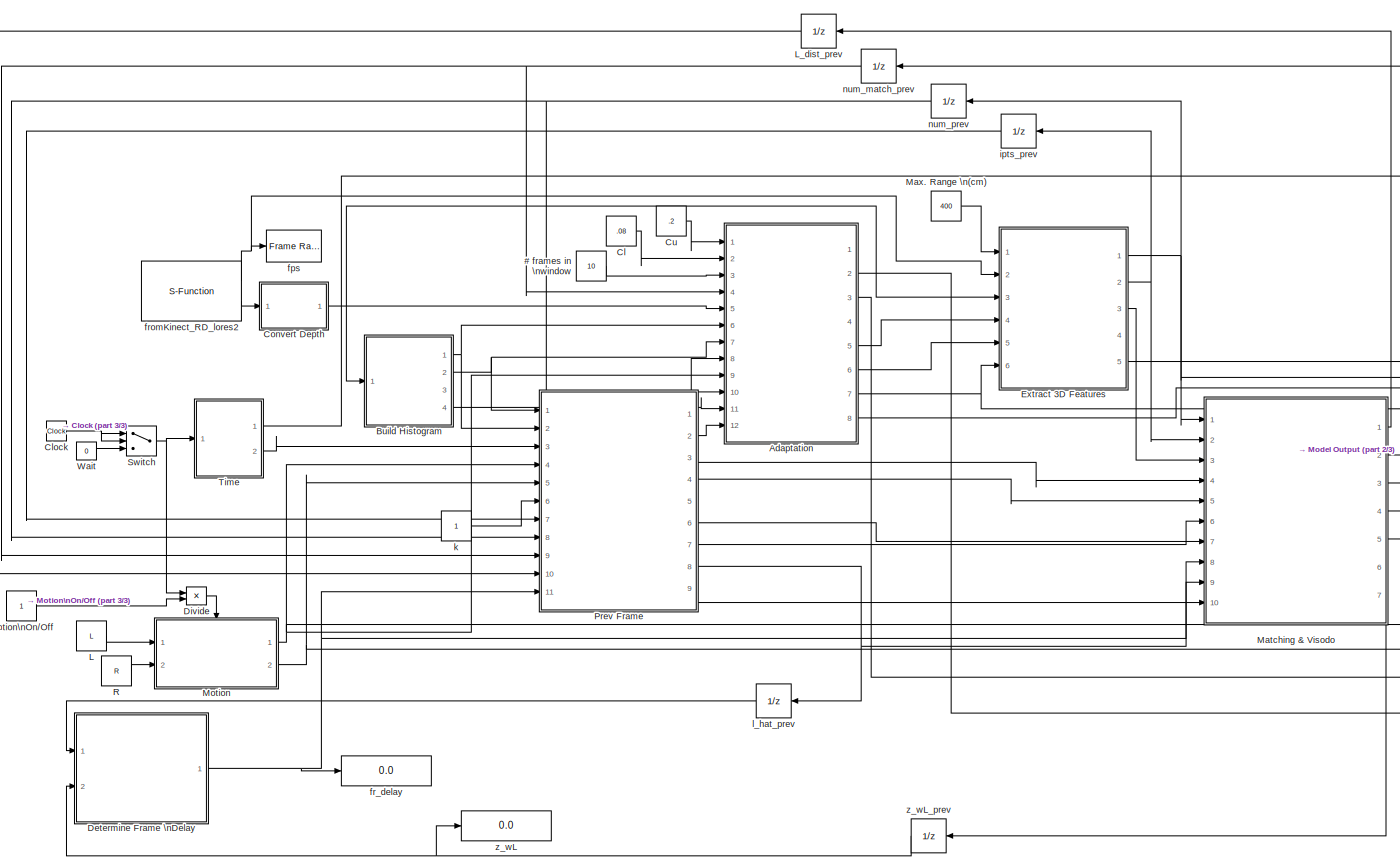
[diagram: root canvas - part 1/3, most of the canvas]
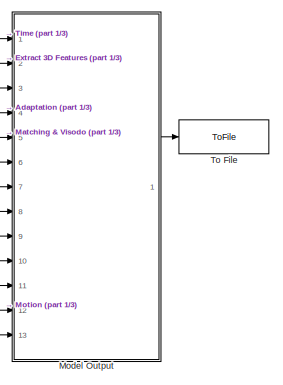
[diagram: root canvas - part 2/3, middle right region]
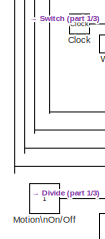
[diagram: root canvas - part 3/3, middle left region]
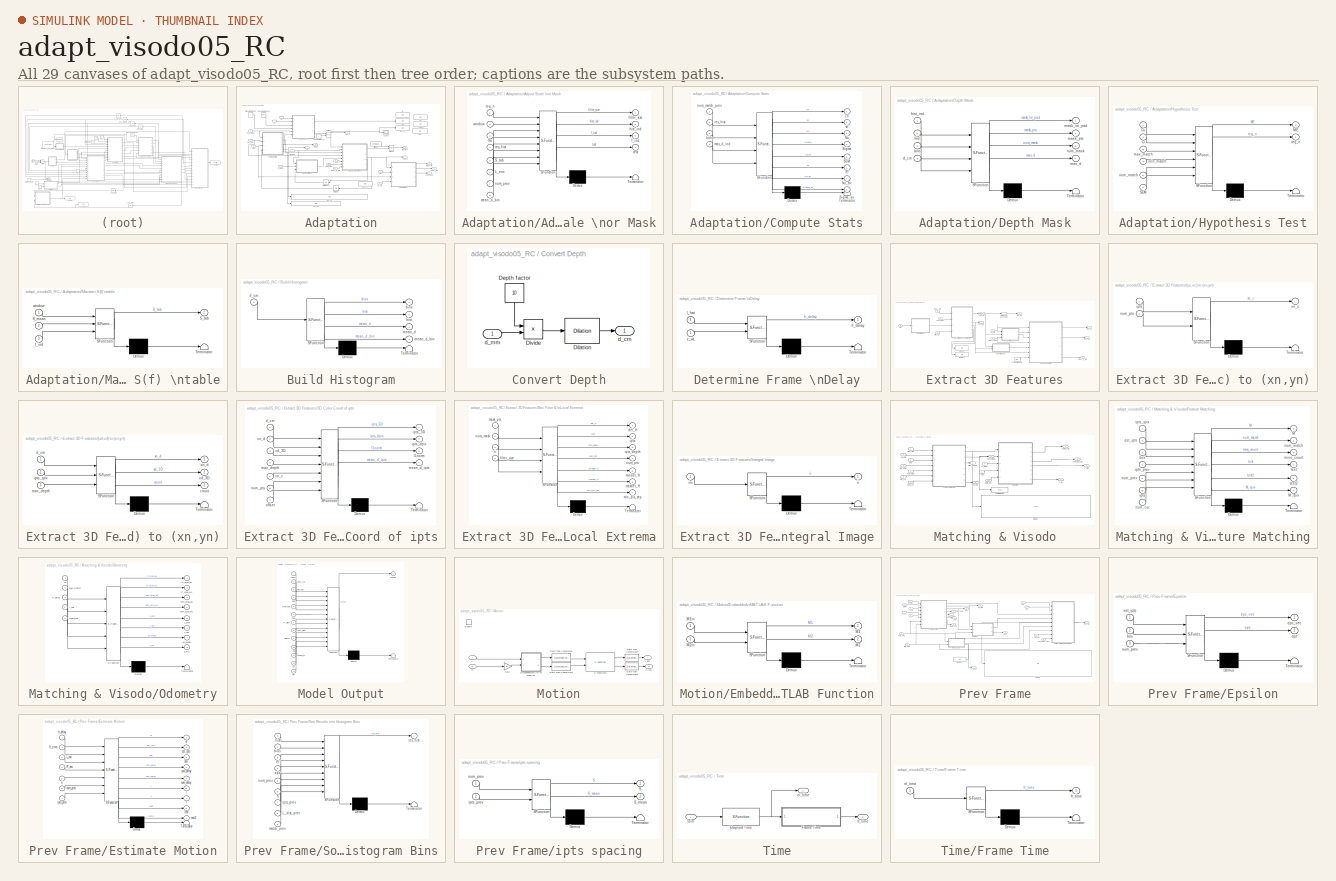
[diagram: thumbnail index - all 29 canvases of the model, root first then tree order]
MODEL adapt_visodo05_RC
KIND model
BLOCK [Constant] # frames in \nwindow
  OutDataType = fixdt(1, 16)
  OutScaling = 2^0
  SID = 1045
  Value = 10
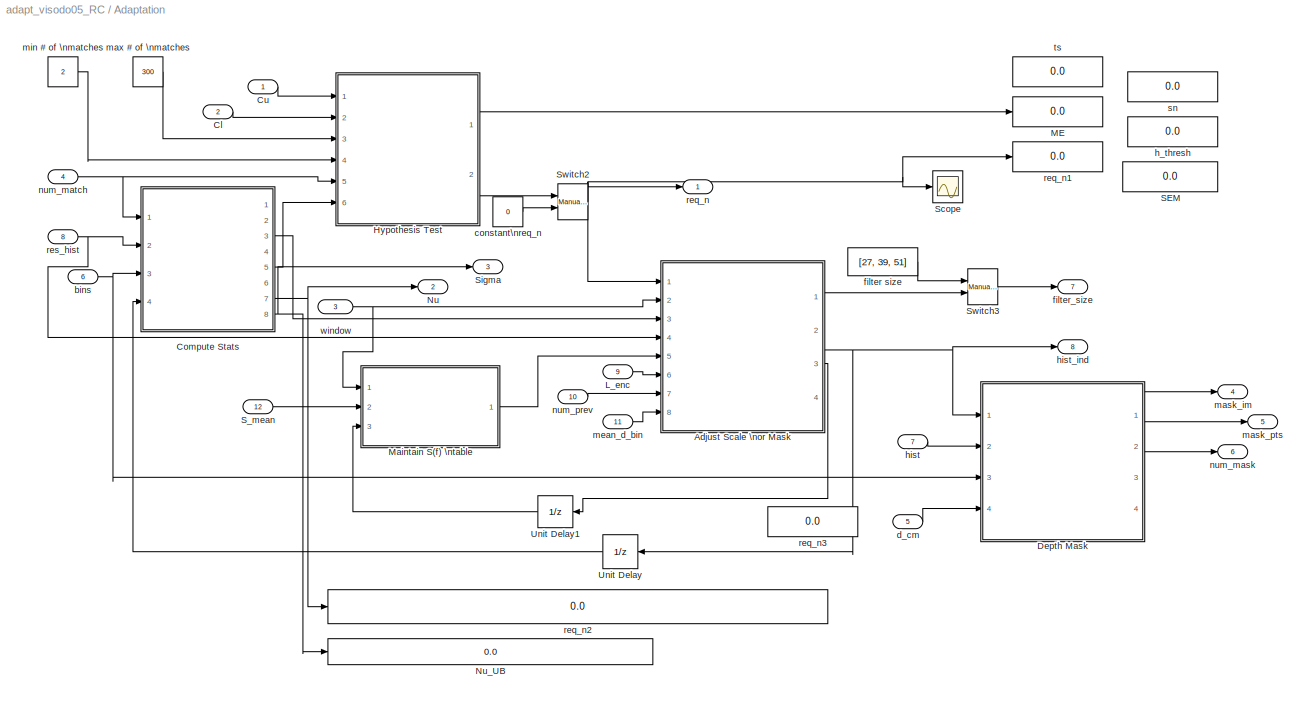
BLOCK [SubSystem] Adaptation
  FunctionWithSeparateData = off
  MaskHideContents = off
  MinAlgLoopOccurrences = off
  Opaque = off
  Ports = [12, 8]
  PropExecContextOutsideSubsystem = off
  RTWSystemCode = Auto
  RequestExecContextInheritance = off
  SID = 1212
BLOCK [SubSystem] Adaptation/Adjust Scale \nor Mask
  FunctionWithSeparateData = off
  MaskDescription = Embedded MATLAB block
  MaskDisplay = disp('decision');
  MaskHideContents = off
  MaskIconFrame = on
  MaskIconOpaque = off
  MaskIconRotate = none
  MaskIconUnits = autoscale
  MaskPortRotate = default
  MaskSelfModifiable = on
  MaskType = Stateflow
  MinAlgLoopOccurrences = off
  Opaque = off
  PermitHierarchicalResolution = ExplicitOnly
  Ports = [8, 4]
  PropExecContextOutsideSubsystem = off
  RTWSystemCode = Auto
  RequestExecContextInheritance = off
  SID = 1338
  TreatAsAtomicUnit = on
BLOCK [Demux] Adaptation/Adjust Scale \nor Mask/ Demux 
  Outputs = 1
  Ports = [1, 1]
  SID = 15
BLOCK [S-Function] Adaptation/Adjust Scale \nor Mask/ SFunction 
  EnableBusSupport = on
  FunctionName = sf_sfun
  PortCounts = [8 5]
  Ports = [8, 5]
  SID = 14
  Tag = Stateflow S-Function adapt_visodo05_RC 14
BLOCK [Terminator] Adaptation/Adjust Scale \nor Mask/ Terminator 
  SID = 17
BLOCK [Inport] Adaptation/Adjust Scale \nor Mask/L_enc
  IconDisplay = Port number
  Port = 6
  SID = 23
BLOCK [Inport] Adaptation/Adjust Scale \nor Mask/Nu
  IconDisplay = Port number
  Port = 3
  SID = 18
BLOCK [Inport] Adaptation/Adjust Scale \nor Mask/S_tab
  IconDisplay = Port number
  Port = 5
  SID = 29
BLOCK [Outport] Adaptation/Adjust Scale \nor Mask/f_ind
  IconDisplay = Port number
  Port = 3
  SID = 28
BLOCK [Outport] Adaptation/Adjust Scale \nor Mask/filter_size
  IconDisplay = Port number
  SID = 19
BLOCK [Outport] Adaptation/Adjust Scale \nor Mask/hist_ind
  IconDisplay = Port number
  OutDataType = sfix(16)
  OutScaling = 2^0
  Port = 2
  SID = 5
BLOCK [Inport] Adaptation/Adjust Scale \nor Mask/mean_d_bin
  IconDisplay = Port number
  Port = 8
  SID = 27
BLOCK [Inport] Adaptation/Adjust Scale \nor Mask/num_prev
  IconDisplay = Port number
  Port = 7
  SID = 24
BLOCK [Inport] Adaptation/Adjust Scale \nor Mask/req_n
  IconDisplay = Port number
  OutDataType = sfix(16)
  OutScaling = 2^0
  SID = 1
BLOCK [Inport] Adaptation/Adjust Scale \nor Mask/res_hist
  IconDisplay = Port number
  Port = 4
  SID = 30
BLOCK [Outport] Adaptation/Adjust Scale \nor Mask/test
  IconDisplay = Port number
  Port = 4
  SID = 26
BLOCK [Inport] Adaptation/Adjust Scale \nor Mask/window
  IconDisplay = Port number
  Port = 2
  SID = 20
BLOCK [Inport] Adaptation/Cl
  IconDisplay = Port number
  Port = 2
  SID = 1488
BLOCK [SubSystem] Adaptation/Compute Stats
  FunctionWithSeparateData = off
  MaskDescription = Embedded MATLAB block
  MaskDisplay = disp('stats');
  MaskHideContents = off
  MaskIconFrame = on
  MaskIconOpaque = off
  MaskIconRotate = none
  MaskIconUnits = autoscale
  MaskPortRotate = default
  MaskSelfModifiable = on
  MaskType = Stateflow
  MinAlgLoopOccurrences = off
  Opaque = off
  PermitHierarchicalResolution = ExplicitOnly
  Ports = [4, 8]
  PropExecContextOutsideSubsystem = off
  RTWSystemCode = Auto
  RequestExecContextInheritance = off
  SID = 1346
  TreatAsAtomicUnit = on
BLOCK [Demux] Adaptation/Compute Stats/ Demux 
  Outputs = 1
  Ports = [1, 1]
  SID = 15
BLOCK [S-Function] Adaptation/Compute Stats/ SFunction 
  EnableBusSupport = on
  FunctionName = sf_sfun
  PortCounts = [4 9]
  Ports = [4, 9]
  SID = 14
  Tag = Stateflow S-Function adapt_visodo05_RC 20
BLOCK [Terminator] Adaptation/Compute Stats/ Terminator 
  SID = 17
BLOCK [Outport] Adaptation/Compute Stats/Ln
  IconDisplay = Port number
  SID = 25
BLOCK [Outport] Adaptation/Compute Stats/Nu
  IconDisplay = Port number
  Port = 3
  SID = 19
BLOCK [Outport] Adaptation/Compute Stats/Nu_av
  IconDisplay = Port number
  Port = 7
  SID = 27
BLOCK [Outport] Adaptation/Compute Stats/SEM
  IconDisplay = Port number
  Port = 5
  SID = 20
BLOCK [Outport] Adaptation/Compute Stats/Sigma
  IconDisplay = Port number
  Port = 4
  SID = 26
BLOCK [Outport] Adaptation/Compute Stats/Sigma_av
  IconDisplay = Port number
  Port = 8
  SID = 28
BLOCK [Inport] Adaptation/Compute Stats/bins
  IconDisplay = Port number
  Port = 3
  SID = 18
BLOCK [Outport] Adaptation/Compute Stats/ef
  IconDisplay = Port number
  Port = 6
  SID = 23
BLOCK [Inport] Adaptation/Compute Stats/max_d_ind
  IconDisplay = Port number
  Port = 4
  SID = 24
BLOCK [Inport] Adaptation/Compute Stats/num_match_prev
  IconDisplay = Port number
  SID = 22
BLOCK [Inport] Adaptation/Compute Stats/res_hist
  IconDisplay = Port number
  OutDataType = sfix(16)
  OutScaling = 2^0
  Port = 2
  SID = 1
BLOCK [Outport] Adaptation/Compute Stats/sn
  IconDisplay = Port number
  Port = 2
  SID = 21
BLOCK [Inport] Adaptation/Cu
  IconDisplay = Port number
  SID = 1487
BLOCK [SubSystem] Adaptation/Depth Mask
  FunctionWithSeparateData = off
  MaskDescription = Embedded MATLAB block
  MaskDisplay = disp('make_mask');
  MaskHideContents = off
  MaskIconFrame = on
  MaskIconOpaque = off
  MaskIconRotate = none
  MaskIconUnits = autoscale
  MaskPortRotate = default
  MaskSelfModifiable = on
  MaskType = Stateflow
  MinAlgLoopOccurrences = off
  Opaque = off
  PermitHierarchicalResolution = ExplicitOnly
  Ports = [4, 4]
  PropExecContextOutsideSubsystem = off
  RTWSystemCode = Auto
  RequestExecContextInheritance = off
  SID = 1407
  TreatAsAtomicUnit = on
BLOCK [Demux] Adaptation/Depth Mask/ Demux 
  Outputs = 1
  Ports = [1, 1]
  SID = 15
BLOCK [S-Function] Adaptation/Depth Mask/ SFunction 
  EnableBusSupport = on
  FunctionName = sf_sfun
  PortCounts = [4 5]
  Ports = [4, 5]
  SID = 14
  Tag = Stateflow S-Function adapt_visodo05_RC 19
BLOCK [Terminator] Adaptation/Depth Mask/ Terminator 
  SID = 17
BLOCK [Inport] Adaptation/Depth Mask/bins
  IconDisplay = Port number
  Port = 3
  SID = 28
BLOCK [Inport] Adaptation/Depth Mask/d_cm
  IconDisplay = Port number
  Port = 4
  SID = 19
BLOCK [Inport] Adaptation/Depth Mask/hist
  IconDisplay = Port number
  Port = 2
  SID = 18
BLOCK [Inport] Adaptation/Depth Mask/hist_ind
  IconDisplay = Port number
  SID = 30
BLOCK [Outport] Adaptation/Depth Mask/mask_im_pad
  IconDisplay = Port number
  SID = 22
BLOCK [Outport] Adaptation/Depth Mask/mask_pts
  IconDisplay = Port number
  OutDataType = sfix(16)
  OutScaling = 2^0
  Port = 2
  SID = 5
BLOCK [Outport] Adaptation/Depth Mask/max_d
  IconDisplay = Port number
  Port = 4
  SID = 23
BLOCK [Outport] Adaptation/Depth Mask/num_mask
  IconDisplay = Port number
  Port = 3
  SID = 20
BLOCK [SubSystem] Adaptation/Hypothesis Test
  FunctionWithSeparateData = off
  MaskDescription = Embedded MATLAB block
  MaskDisplay = disp('req_num');
  MaskHideContents = off
  MaskIconFrame = on
  MaskIconOpaque = off
  MaskIconRotate = none
  MaskIconUnits = autoscale
  MaskPortRotate = default
  MaskSelfModifiable = on
  MaskType = Stateflow
  MinAlgLoopOccurrences = off
  Opaque = off
  PermitHierarchicalResolution = ExplicitOnly
  Ports = [6, 2]
  PropExecContextOutsideSubsystem = off
  RTWSystemCode = Auto
  RequestExecContextInheritance = off
  SID = 1098
  TreatAsAtomicUnit = on
BLOCK [Demux] Adaptation/Hypothesis Test/ Demux 
  Outputs = 1
  Ports = [1, 1]
  SID = 15
BLOCK [S-Function] Adaptation/Hypothesis Test/ SFunction 
  EnableBusSupport = on
  FunctionName = sf_sfun
  PortCounts = [6 3]
  Ports = [6, 3]
  SID = 14
  Tag = Stateflow S-Function adapt_visodo05_RC 3
BLOCK [Terminator] Adaptation/Hypothesis Test/ Terminator 
  SID = 17
BLOCK [Inport] Adaptation/Hypothesis Test/Cl
  IconDisplay = Port number
  Port = 2
  SID = 32
BLOCK [Inport] Adaptation/Hypothesis Test/Cu
  IconDisplay = Port number
  SID = 30
BLOCK [Outport] Adaptation/Hypothesis Test/ME
  IconDisplay = Port number
  SID = 23
BLOCK [Inport] Adaptation/Hypothesis Test/SEM
  IconDisplay = Port number
  OutDataType = sfix(16)
  OutScaling = 2^0
  Port = 6
  SID = 1
BLOCK [Inport] Adaptation/Hypothesis Test/max_match
  IconDisplay = Port number
  Port = 3
  SID = 27
BLOCK [Inport] Adaptation/Hypothesis Test/min_match
  IconDisplay = Port number
  Port = 4
  SID = 29
BLOCK [Inport] Adaptation/Hypothesis Test/num_match
  IconDisplay = Port number
  Port = 5
  SID = 19
BLOCK [Outport] Adaptation/Hypothesis Test/req_n
  IconDisplay = Port number
  OutDataType = sfix(16)
  OutScaling = 2^0
  Port = 2
  SID = 5
BLOCK [Inport] Adaptation/L_enc
  IconDisplay = Port number
  OutDataType = fixdt(1, 16)
  OutScaling = 2^0
  Port = 9
  SID = 1467
BLOCK [Display] Adaptation/ME
  Decimation = 1
  Lockdown = off
  Ports = [1]
  SID = 1352
BLOCK [SubSystem] Adaptation/Maintain S(f) \ntable
  FunctionWithSeparateData = off
  MaskDescription = Embedded MATLAB block
  MaskDisplay = disp('S_f_table');
  MaskHideContents = off
  MaskIconFrame = on
  MaskIconOpaque = off
  MaskIconRotate = none
  MaskIconUnits = autoscale
  MaskPortRotate = default
  MaskSelfModifiable = on
  MaskType = Stateflow
  MinAlgLoopOccurrences = off
  Opaque = off
  PermitHierarchicalResolution = ExplicitOnly
  Ports = [3, 1]
  PropExecContextOutsideSubsystem = off
  RTWSystemCode = Auto
  RequestExecContextInheritance = off
  SID = 1520
  TreatAsAtomicUnit = on
BLOCK [Demux] Adaptation/Maintain S(f) \ntable/ Demux 
  Outputs = 1
  Ports = [1, 1]
  SID = 15
BLOCK [S-Function] Adaptation/Maintain S(f) \ntable/ SFunction 
  EnableBusSupport = on
  FunctionName = sf_sfun
  PortCounts = [3 2]
  Ports = [3, 2]
  SID = 14
  Tag = Stateflow S-Function adapt_visodo05_RC 6
BLOCK [Terminator] Adaptation/Maintain S(f) \ntable/ Terminator 
  SID = 17
BLOCK [Inport] Adaptation/Maintain S(f) \ntable/S_mean
  IconDisplay = Port number
  OutDataType = sfix(16)
  OutScaling = 2^0
  Port = 2
  SID = 1
BLOCK [Outport] Adaptation/Maintain S(f) \ntable/S_tab
  IconDisplay = Port number
  OutDataType = sfix(16)
  OutScaling = 2^0
  SID = 5
BLOCK [Inport] Adaptation/Maintain S(f) \ntable/f_ind
  IconDisplay = Port number
  Port = 3
  SID = 19
BLOCK [Inport] Adaptation/Maintain S(f) \ntable/window
  IconDisplay = Port number
  SID = 18
BLOCK [Outport] Adaptation/Nu
  IconDisplay = Port number
  Port = 2
  SID = 1216
BLOCK [Display] Adaptation/Nu_UB
  Decimation = 1
  Lockdown = off
  Ports = [1]
  SID = 1283
BLOCK [Display] Adaptation/SEM
  Decimation = 1
  Lockdown = off
  Ports = [1]
  SID = 1351
BLOCK [Inport] Adaptation/S_mean
  IconDisplay = Port number
  Port = 12
  SID = 1522
BLOCK [Scope] Adaptation/Scope
  DataFormat = StructureWithTime
  Floating = off
  NumInputPorts = 1
  Ports = [1]
  SID = 1473
  SampleTime = 0
  TimeRange = 1000
  YMax = 2
  YMin = -2
BLOCK [Outport] Adaptation/Sigma
  IconDisplay = Port number
  Port = 3
  SID = 1263
BLOCK [Reference] Adaptation/Switch2  REF=simulink/Signal\nRouting/Manual Switch
  FunctionWithSeparateData = off
  Ports = [2, 1]
  RTWMemSecDataConstants = Inherit from model
  RTWMemSecDataInternal = Inherit from model
  RTWMemSecDataParameters = Inherit from model
  RTWMemSecFuncExecute = Inherit from model
  RTWMemSecFuncInitTerm = Inherit from model
  SID = 1423
  ShowPortLabels = FromPortIcon
  SourceBlock = simulink/Signal\nRouting/Manual Switch
  SourceType = Manual Switch
  SystemSampleTime = -1
  action = 0
  sw = 1
  varsize = off
BLOCK [Reference] Adaptation/Switch3  REF=simulink/Signal\nRouting/Manual Switch
  FunctionWithSeparateData = off
  Ports = [2, 1]
  RTWMemSecDataConstants = Inherit from model
  RTWMemSecDataInternal = Inherit from model
  RTWMemSecDataParameters = Inherit from model
  RTWMemSecFuncExecute = Inherit from model
  RTWMemSecFuncInitTerm = Inherit from model
  SID = 1425
  ShowPortLabels = FromPortIcon
  SourceBlock = simulink/Signal\nRouting/Manual Switch
  SourceType = Manual Switch
  SystemSampleTime = -1
  action = 0
  sw = 0
  varsize = off
BLOCK [UnitDelay] Adaptation/Unit Delay
  SID = 1471
  SampleTime = -1
  X0 = 2
BLOCK [UnitDelay] Adaptation/Unit Delay1
  SID = 1521
  SampleTime = -1
  X0 = 2
BLOCK [Inport] Adaptation/bins
  IconDisplay = Port number
  Port = 6
  SID = 1397
BLOCK [Constant] Adaptation/constant\nreq_n
  OutDataType = fixdt(1, 16)
  OutScaling = 2^0
  SID = 1424
  Value = 0
BLOCK [Inport] Adaptation/d_cm
  IconDisplay = Port number
  Port = 5
  SID = 1404
BLOCK [Constant] Adaptation/filter size
  OutDataType = fixdt(1, 16)
  OutScaling = 2^0
  SID = 1413
  Value = [27, 39, 51]
  VectorParams1D = off
BLOCK [Outport] Adaptation/filter_size
  IconDisplay = Port number
  Port = 7
  SID = 1337
BLOCK [Display] Adaptation/h_thresh
  Decimation = 1
  Lockdown = off
  Ports = [1]
  SID = 1464
BLOCK [Inport] Adaptation/hist
  IconDisplay = Port number
  OutDataType = fixdt(1, 16)
  OutScaling = 2^0
  Port = 7
  SID = 1405
BLOCK [Outport] Adaptation/hist_ind
  IconDisplay = Port number
  Port = 8
  SID = 1219
BLOCK [Outport] Adaptation/mask_im
  IconDisplay = Port number
  Port = 4
  SID = 1410
BLOCK [Outport] Adaptation/mask_pts
  IconDisplay = Port number
  Port = 5
  SID = 1411
BLOCK [Constant] Adaptation/max # of \nmatches
  OutDataType = fixdt(1, 16)
  OutScaling = 2^0
  SID = 1516
  Value = 300
BLOCK [Inport] Adaptation/mean_d_bin
  IconDisplay = Port number
  OutDataType = fixdt(1, 16)
  OutScaling = 2^0
  Port = 11
  SID = 1506
BLOCK [Constant] Adaptation/min # of \nmatches
  OutDataType = fixdt(1, 16)
  OutScaling = 2^0
  SID = 1466
  Value = 2
BLOCK [Outport] Adaptation/num_mask
  IconDisplay = Port number
  Port = 6
  SID = 1412
BLOCK [Inport] Adaptation/num_match
  IconDisplay = Port number
  Port = 4
  SID = 1265
BLOCK [Inport] Adaptation/num_prev
  IconDisplay = Port number
  OutDataType = fixdt(1, 16)
  OutScaling = 2^0
  Port = 10
  SID = 1503
BLOCK [Outport] Adaptation/req_n
  IconDisplay = Port number
  SID = 1214
BLOCK [Display] Adaptation/req_n1
  Decimation = 1
  Lockdown = off
  Ports = [1]
  SID = 1465
BLOCK [Display] Adaptation/req_n2
  Decimation = 1
  Lockdown = off
  Ports = [1]
  SID = 1508
BLOCK [Display] Adaptation/req_n3
  Decimation = 1
  Lockdown = off
  Ports = [1]
  SID = 1509
BLOCK [Inport] Adaptation/res_hist
  IconDisplay = Port number
  Port = 8
  SID = 1336
BLOCK [Display] Adaptation/sn
  Decimation = 1
  Lockdown = off
  Ports = [1]
  SID = 1395
BLOCK [Display] Adaptation/ts
  Decimation = 1
  Lockdown = off
  Ports = [1]
  SID = 1278
BLOCK [Inport] Adaptation/window
  IconDisplay = Port number
  Port = 3
  SID = 1218
BLOCK [SubSystem] Build Histogram
  FunctionWithSeparateData = off
  MaskDescription = Embedded MATLAB block
  MaskDisplay = disp('hist');
  MaskHideContents = off
  MaskIconFrame = on
  MaskIconOpaque = off
  MaskIconRotate = none
  MaskIconUnits = autoscale
  MaskPortRotate = default
  MaskSelfModifiable = on
  MaskType = Stateflow
  MinAlgLoopOccurrences = off
  Opaque = off
  PermitHierarchicalResolution = ExplicitOnly
  Ports = [1, 4]
  PropExecContextOutsideSubsystem = off
  RTWSystemCode = Auto
  RequestExecContextInheritance = off
  SID = 1289
  TreatAsAtomicUnit = on
BLOCK [Demux] Build Histogram/ Demux 
  Outputs = 1
  Ports = [1, 1]
  SID = 15
BLOCK [S-Function] Build Histogram/ SFunction 
  EnableBusSupport = on
  FunctionName = sf_sfun
  PortCounts = [1 5]
  Ports = [1, 5]
  SID = 14
  Tag = Stateflow S-Function adapt_visodo05_RC 1
BLOCK [Terminator] Build Histogram/ Terminator 
  SID = 17
BLOCK [Outport] Build Histogram/bins
  IconDisplay = Port number
  SID = 18
BLOCK [Inport] Build Histogram/d_cm
  IconDisplay = Port number
  OutDataType = sfix(16)
  OutScaling = 2^0
  SID = 1
BLOCK [Outport] Build Histogram/hist
  IconDisplay = Port number
  OutDataType = sfix(16)
  OutScaling = 2^0
  Port = 2
  SID = 5
BLOCK [Outport] Build Histogram/mean_d
  IconDisplay = Port number
  Port = 3
  SID = 19
BLOCK [Outport] Build Histogram/mean_d_bin
  IconDisplay = Port number
  Port = 4
  SID = 20
BLOCK [Constant] Cl
  OutDataType = fixdt(1, 16)
  OutScaling = 2^0
  SID = 1552
  Value = .08
BLOCK [Clock] Clock
  Decimation = 10
  SID = 1525
BLOCK [SubSystem] Convert Depth
  FunctionWithSeparateData = off
  MaskHideContents = off
  MinAlgLoopOccurrences = off
  Opaque = off
  Ports = [1, 1]
  PropExecContextOutsideSubsystem = off
  RTWSystemCode = Auto
  RequestExecContextInheritance = off
  SID = 1318
BLOCK [Constant] Convert Depth/Depth factor
  OutDataType = fixdt(1, 16)
  OutScaling = 2^0
  SID = 907
  Value = 10
BLOCK [Reference] Convert Depth/Dilation  REF=vipmorphops/Dilation
  Ports = [1, 1]
  SID = 1012
  SourceBlock = vipmorphops/Dilation
  SourceType = Dilation
  nhoodsrc = Specify via dialog
  strel = [2 2; 2 2]
BLOCK [Product] Convert Depth/Divide
  InputSameDT = off
  Inputs = /*
  OutDataType = fixdt(1, 16)
  OutDataTypeMode = Inherit via internal rule
  OutDataTypeStr = Inherit: Inherit via internal rule
  OutScaling = 2^-10
  Ports = [2, 1]
  RndMeth = Floor
  SID = 906
  SaturateOnIntegerOverflow = off
BLOCK [Outport] Convert Depth/d_cm
  IconDisplay = Port number
  SID = 1319
BLOCK [Inport] Convert Depth/d_mm
  IconDisplay = Port number
  SID = 1320
BLOCK [Constant] Cu
  OutDataType = fixdt(1, 16)
  OutScaling = 2^0
  SID = 1551
  Value = .2
BLOCK [SubSystem] Determine Frame \nDelay
  FunctionWithSeparateData = off
  MaskDescription = Embedded MATLAB block
  MaskDisplay = disp('calc_fr_delay');
  MaskHideContents = off
  MaskIconFrame = on
  MaskIconOpaque = off
  MaskIconRotate = none
  MaskIconUnits = autoscale
  MaskPortRotate = default
  MaskSelfModifiable = on
  MaskType = Stateflow
  MinAlgLoopOccurrences = off
  Opaque = off
  PermitHierarchicalResolution = ExplicitOnly
  Ports = [2, 1]
  PropExecContextOutsideSubsystem = off
  RTWSystemCode = Auto
  RequestExecContextInheritance = off
  SID = 1510
  TreatAsAtomicUnit = on
BLOCK [Demux] Determine Frame \nDelay/ Demux 
  Outputs = 1
  Ports = [1, 1]
  SID = 15
BLOCK [S-Function] Determine Frame \nDelay/ SFunction 
  EnableBusSupport = on
  FunctionName = sf_sfun
  PortCounts = [2 2]
  Ports = [2, 2]
  SID = 14
  Tag = Stateflow S-Function adapt_visodo05_RC 2
BLOCK [Terminator] Determine Frame \nDelay/ Terminator 
  SID = 17
BLOCK [Outport] Determine Frame \nDelay/fr_delay
  IconDisplay = Port number
  OutDataType = sfix(16)
  OutScaling = 2^0
  SID = 5
BLOCK [Inport] Determine Frame \nDelay/l_hat
  IconDisplay = Port number
  OutDataType = sfix(16)
  OutScaling = 2^0
  SID = 1
BLOCK [Inport] Determine Frame \nDelay/z_wL
  IconDisplay = Port number
  Port = 2
  SID = 18
BLOCK [Product] Divide
  InputSameDT = off
  Inputs = **
  OutDataType = fixdt(1, 16)
  OutDataTypeMode = Inherit via internal rule
  OutDataTypeStr = Inherit: Inherit via internal rule
  OutScaling = 2^-10
  Ports = [2, 1]
  RndMeth = Floor
  SID = 1548
  SaturateOnIntegerOverflow = off
BLOCK [SubSystem] Extract 3D Features
  FunctionWithSeparateData = off
  MaskHideContents = off
  MinAlgLoopOccurrences = off
  Opaque = off
  Ports = [6, 5]
  PropExecContextOutsideSubsystem = off
  RTWSystemCode = Auto
  RequestExecContextInheritance = off
  SID = 249
BLOCK [SubSystem] Extract 3D Features/(uc,vc) to (xn,yn)
  FunctionWithSeparateData = off
  MaskDescription = Embedded MATLAB block
  MaskDisplay = disp('uc_to_xn');
  MaskHideContents = off
  MaskIconFrame = on
  MaskIconOpaque = off
  MaskIconRotate = none
  MaskIconUnits = autoscale
  MaskPortRotate = default
  MaskSelfModifiable = on
  MaskType = Stateflow
  MinAlgLoopOccurrences = off
  Opaque = off
  PermitHierarchicalResolution = ExplicitOnly
  Ports = [2, 1]
  PropExecContextOutsideSubsystem = off
  RTWSystemCode = Auto
  RequestExecContextInheritance = off
  SID = 1327
  TreatAsAtomicUnit = on
BLOCK [Demux] Extract 3D Features/(uc,vc) to (xn,yn)/ Demux 
  Outputs = 1
  Ports = [1, 1]
  SID = 15
BLOCK [S-Function] Extract 3D Features/(uc,vc) to (xn,yn)/ SFunction 
  EnableBusSupport = on
  FunctionName = sf_sfun
  PortCounts = [2 2]
  Ports = [2, 2]
  SID = 14
  Tag = Stateflow S-Function adapt_visodo05_RC 8
BLOCK [Terminator] Extract 3D Features/(uc,vc) to (xn,yn)/ Terminator 
  SID = 17
BLOCK [Inport] Extract 3D Features/(uc,vc) to (xn,yn)/ipts
  IconDisplay = Port number
  SID = 18
BLOCK [Inport] Extract 3D Features/(uc,vc) to (xn,yn)/num_pts
  IconDisplay = Port number
  Port = 2
  SID = 22
BLOCK [Outport] Extract 3D Features/(uc,vc) to (xn,yn)/xn_c
  IconDisplay = Port number
  OutDataType = sfix(16)
  OutScaling = 2^0
  SID = 5
BLOCK [SubSystem] Extract 3D Features/(ud,vd) to (xn,yn)
  FunctionWithSeparateData = off
  MaskDescription = Embedded MATLAB block
  MaskDisplay = disp('d_to_xn');
  MaskHideContents = off
  MaskIconFrame = on
  MaskIconOpaque = off
  MaskIconRotate = none
  MaskIconUnits = autoscale
  MaskPortRotate = default
  MaskSelfModifiable = on
  MaskType = Stateflow
  MinAlgLoopOccurrences = off
  Opaque = off
  PermitHierarchicalResolution = ExplicitOnly
  Ports = [3, 3]
  PropExecContextOutsideSubsystem = off
  RTWSystemCode = Auto
  RequestExecContextInheritance = off
  SID = 1328
  TreatAsAtomicUnit = on
BLOCK [Demux] Extract 3D Features/(ud,vd) to (xn,yn)/ Demux 
  Outputs = 1
  Ports = [1, 1]
  SID = 15
BLOCK [S-Function] Extract 3D Features/(ud,vd) to (xn,yn)/ SFunction 
  EnableBusSupport = on
  FunctionName = sf_sfun
  PortCounts = [3 4]
  Ports = [3, 4]
  SID = 14
  Tag = Stateflow S-Function adapt_visodo05_RC 9
BLOCK [Terminator] Extract 3D Features/(ud,vd) to (xn,yn)/ Terminator 
  SID = 17
BLOCK [Outport] Extract 3D Features/(ud,vd) to (xn,yn)/count
  IconDisplay = Port number
  Port = 3
  SID = 22
BLOCK [Inport] Extract 3D Features/(ud,vd) to (xn,yn)/d_cm
  IconDisplay = Port number
  OutDataType = sfix(16)
  OutScaling = 2^0
  SID = 1
BLOCK [Inport] Extract 3D Features/(ud,vd) to (xn,yn)/ipts_rpix
  IconDisplay = Port number
  Port = 2
  SID = 21
BLOCK [Inport] Extract 3D Features/(ud,vd) to (xn,yn)/max_depth
  IconDisplay = Port number
  Port = 3
  SID = 20
BLOCK [Outport] Extract 3D Features/(ud,vd) to (xn,yn)/xd_3D
  IconDisplay = Port number
  Port = 2
  SID = 19
BLOCK [Outport] Extract 3D Features/(ud,vd) to (xn,yn)/xn_d
  IconDisplay = Port number
  OutDataType = sfix(16)
  OutScaling = 2^0
  SID = 5
BLOCK [SubSystem] Extract 3D Features/3D Color Coord of ipts
  FunctionWithSeparateData = off
  MaskDescription = Embedded MATLAB block
  MaskDisplay = disp('ipts_to_3Ddepth');
  MaskHideContents = off
  MaskIconFrame = on
  MaskIconOpaque = off
  MaskIconRotate = none
  MaskIconUnits = autoscale
  MaskPortRotate = default
  MaskSelfModifiable = on
  MaskType = Stateflow
  MinAlgLoopOccurrences = off
  Opaque = off
  PermitHierarchicalResolution = ExplicitOnly
  Ports = [7, 4]
  PropExecContextOutsideSubsystem = off
  RTWSystemCode = Auto
  RequestExecContextInheritance = off
  SID = 1329
  TreatAsAtomicUnit = on
BLOCK [Demux] Extract 3D Features/3D Color Coord of ipts/ Demux 
  Outputs = 1
  Ports = [1, 1]
  SID = 15
BLOCK [S-Function] Extract 3D Features/3D Color Coord of ipts/ SFunction 
  EnableBusSupport = on
  FunctionName = sf_sfun
  PortCounts = [7 5]
  Ports = [7, 5]
  SID = 14
  Tag = Stateflow S-Function adapt_visodo05_RC 10
BLOCK [Terminator] Extract 3D Features/3D Color Coord of ipts/ Terminator 
  SID = 17
BLOCK [Inport] Extract 3D Features/3D Color Coord of ipts/d_cm
  IconDisplay = Port number
  SID = 25
BLOCK [Outport] Extract 3D Features/3D Color Coord of ipts/ipts_3D
  IconDisplay = Port number
  SID = 37
BLOCK [Outport] Extract 3D Features/3D Color Coord of ipts/ipts_dpix
  IconDisplay = Port number
  Port = 2
  SID = 23
BLOCK [Outport] Extract 3D Features/3D Color Coord of ipts/l1norm
  IconDisplay = Port number
  Port = 3
  SID = 27
BLOCK [Inport] Extract 3D Features/3D Color Coord of ipts/max_depth
  IconDisplay = Port number
  Port = 4
  SID = 26
BLOCK [Outport] Extract 3D Features/3D Color Coord of ipts/mean_d_ipts
  IconDisplay = Port number
  Port = 4
  SID = 38
BLOCK [Inport] Extract 3D Features/3D Color Coord of ipts/num_pts
  IconDisplay = Port number
  Port = 6
  SID = 19
BLOCK [Inport] Extract 3D Features/3D Color Coord of ipts/offset
  IconDisplay = Port number
  Port = 7
  SID = 32
BLOCK [Inport] Extract 3D Features/3D Color Coord of ipts/xd_3D
  IconDisplay = Port number
  Port = 3
  SID = 20
BLOCK [Inport] Extract 3D Features/3D Color Coord of ipts/xn_c
  IconDisplay = Port number
  Port = 5
  SID = 18
BLOCK [Inport] Extract 3D Features/3D Color Coord of ipts/xn_d
  IconDisplay = Port number
  OutDataType = sfix(16)
  OutScaling = 2^0
  Port = 2
  SID = 1
BLOCK [SubSystem] Extract 3D Features/Box Filter & \nLocal Extrema
  FunctionWithSeparateData = off
  MaskDescription = Embedded MATLAB block
  MaskDisplay = disp('box_filter');
  MaskHideContents = off
  MaskIconFrame = on
  MaskIconOpaque = off
  MaskIconRotate = none
  MaskIconUnits = autoscale
  MaskPortRotate = default
  MaskSelfModifiable = on
  MaskType = Stateflow
  MinAlgLoopOccurrences = off
  Opaque = off
  PermitHierarchicalResolution = ExplicitOnly
  Ports = [4, 7]
  PropExecContextOutsideSubsystem = off
  RTWSystemCode = Auto
  RequestExecContextInheritance = off
  SID = 241
  TreatAsAtomicUnit = on
BLOCK [Demux] Extract 3D Features/Box Filter & \nLocal Extrema/ Demux 
  Outputs = 1
  Ports = [1, 1]
  SID = 15
BLOCK [S-Function] Extract 3D Features/Box Filter & \nLocal Extrema/ SFunction 
  EnableBusSupport = on
  FunctionName = sf_sfun
  PortCounts = [4 8]
  Ports = [4, 8]
  SID = 14
  Tag = Stateflow S-Function adapt_visodo05_RC 5
BLOCK [Terminator] Extract 3D Features/Box Filter & \nLocal Extrema/ Terminator 
  SID = 17
BLOCK [Outport] Extract 3D Features/Box Filter & \nLocal Extrema/det_H
  IconDisplay = Port number
  SID = 29
BLOCK [Inport] Extract 3D Features/Box Filter & \nLocal Extrema/filter_size
  IconDisplay = Port number
  Port = 4
  SID = 22
BLOCK [Inport] Extract 3D Features/Box Filter & \nLocal Extrema/ii
  IconDisplay = Port number
  OutDataType = sfix(16)
  OutScaling = 2^0
  Port = 3
  SID = 1
BLOCK [Outport] Extract 3D Features/Box Filter & \nLocal Extrema/ipts
  IconDisplay = Port number
  Port = 2
  SID = 24
BLOCK [Outport] Extract 3D Features/Box Filter & \nLocal Extrema/ipts_depth
  IconDisplay = Port number
  Port = 3
  SID = 38
BLOCK [Inport] Extract 3D Features/Box Filter & \nLocal Extrema/mask_pts
  IconDisplay = Port number
  SID = 36
BLOCK [Outport] Extract 3D Features/Box Filter & \nLocal Extrema/maxdet_H
  IconDisplay = Port number
  Port = 6
  SID = 28
BLOCK [Outport] Extract 3D Features/Box Filter & \nLocal Extrema/min_pix_sep
  IconDisplay = Port number
  Port = 7
  SID = 35
BLOCK [Outport] Extract 3D Features/Box Filter & \nLocal Extrema/mindet_H
  IconDisplay = Port number
  Port = 5
  SID = 27
BLOCK [Inport] Extract 3D Features/Box Filter & \nLocal Extrema/num_mask
  IconDisplay = Port number
  Port = 2
  SID = 37
BLOCK [Outport] Extract 3D Features/Box Filter & \nLocal Extrema/num_pts
  IconDisplay = Port number
  Port = 4
  SID = 23
BLOCK [Constant] Extract 3D Features/Camera Offset (cm)
  OutDataType = fixdt(1, 16)
  OutDataTypeMode = double
  OutDataTypeStr = double
  OutScaling = 2^0
  SID = 1402
  Value = [-2, -5]
BLOCK [DataTypeConversion] Extract 3D Features/Data Type Conversion
  OutDataType = fixdt(1, 16)
  OutDataTypeMode = uint16
  OutDataTypeStr = uint16
  OutScaling = 2^0
  RndMeth = Floor
  SID = 695
  SaturateOnIntegerOverflow = off
BLOCK [Display] Extract 3D Features/Display
  Decimation = 1
  Lockdown = off
  Ports = [1]
  SID = 1449
BLOCK [Display] Extract 3D Features/Display1
  Decimation = 1
  Lockdown = off
  Ports = [1]
  SID = 1450
BLOCK [SubSystem] Extract 3D Features/Integral Image
  FunctionWithSeparateData = off
  MaskDescription = Embedded MATLAB block
  MaskDisplay = disp('integral_image');
  MaskHideContents = off
  MaskIconFrame = on
  MaskIconOpaque = off
  MaskIconRotate = none
  MaskIconUnits = autoscale
  MaskPortRotate = default
  MaskSelfModifiable = on
  MaskType = Stateflow
  MinAlgLoopOccurrences = off
  Opaque = off
  PermitHierarchicalResolution = ExplicitOnly
  Ports = [1, 1]
  PropExecContextOutsideSubsystem = off
  RTWSystemCode = Auto
  RequestExecContextInheritance = off
  SID = 1041
  TreatAsAtomicUnit = on
BLOCK [Demux] Extract 3D Features/Integral Image/ Demux 
  Outputs = 1
  Ports = [1, 1]
  SID = 15
BLOCK [S-Function] Extract 3D Features/Integral Image/ SFunction 
  EnableBusSupport = on
  FunctionName = sf_sfun
  PortCounts = [1 2]
  Ports = [1, 2]
  SID = 14
  Tag = Stateflow S-Function adapt_visodo05_RC 4
BLOCK [Terminator] Extract 3D Features/Integral Image/ Terminator 
  SID = 17
BLOCK [Outport] Extract 3D Features/Integral Image/ii
  IconDisplay = Port number
  OutDataType = sfix(16)
  OutScaling = 2^0
  SID = 5
BLOCK [Inport] Extract 3D Features/Integral Image/im
  IconDisplay = Port number
  OutDataType = sfix(16)
  OutScaling = 2^0
  SID = 1
BLOCK [DataTypeConversion] Extract 3D Features/convert
  OutDataType = fixdt(1, 16)
  OutScaling = 2^0
  RndMeth = Floor
  SID = 1335
  SaturateOnIntegerOverflow = off
BLOCK [Inport] Extract 3D Features/d_cm
  IconDisplay = Port number
  Port = 3
  SID = 1326
BLOCK [Inport] Extract 3D Features/filter_size
  IconDisplay = Port number
  OutDataType = fixdt(1, 16)
  OutScaling = 2^0
  Port = 6
  SID = 318
BLOCK [Outport] Extract 3D Features/ipts_3D
  IconDisplay = Port number
  Port = 2
  SID = 1334
BLOCK [Outport] Extract 3D Features/ipts_dpix
  IconDisplay = Port number
  Port = 4
  SID = 1451
BLOCK [Outport] Extract 3D Features/ipts_rpix
  IconDisplay = Port number
  Port = 3
  SID = 328
BLOCK [Inport] Extract 3D Features/mask_pts
  IconDisplay = Port number
  Port = 4
  SID = 1061
BLOCK [Inport] Extract 3D Features/max_depth
  IconDisplay = Port number
  OutDataType = fixdt(1, 16)
  OutScaling = 2^0
  SID = 905
BLOCK [Outport] Extract 3D Features/mean_d_ipts
  IconDisplay = Port number
  Port = 5
  SID = 1485
BLOCK [Outport] Extract 3D Features/num_ipts
  IconDisplay = Port number
  SID = 901
BLOCK [Inport] Extract 3D Features/num_mask
  IconDisplay = Port number
  Port = 5
  SID = 320
BLOCK [Inport] Extract 3D Features/rgb
  IconDisplay = Port number
  Port = 2
  SID = 251
BLOCK [Constant] L
  OutDataType = fixdt(1, 16)
  OutScaling = 2^0
  SID = 1526
  Value = L
BLOCK [UnitDelay] L_dist_prev
  SID = 1387
  SampleTime = -1
  X0 = zeros(2,1000)
BLOCK [SubSystem] Matching & Visodo
  FunctionWithSeparateData = off
  MaskHideContents = off
  MinAlgLoopOccurrences = off
  Opaque = off
  Ports = [10, 7]
  PropExecContextOutsideSubsystem = off
  RTWSystemCode = Auto
  RequestExecContextInheritance = off
  SID = 1148
BLOCK [Outport] Matching & Visodo/ L_dist
  IconDisplay = Port number
  SID = 1355
BLOCK [Display] Matching & Visodo/Display
  Decimation = 1
  Lockdown = off
  Ports = [1]
  SID = 1470
BLOCK [SubSystem] Matching & Visodo/Feature Matching
  FunctionWithSeparateData = off
  MaskDescription = Embedded MATLAB block
  MaskDisplay = disp('feat_match');
  MaskHideContents = off
  MaskIconFrame = on
  MaskIconOpaque = off
  MaskIconRotate = none
  MaskIconUnits = autoscale
  MaskPortRotate = default
  MaskSelfModifiable = on
  MaskType = Stateflow
  MinAlgLoopOccurrences = off
  Opaque = off
  PermitHierarchicalResolution = ExplicitOnly
  Ports = [7, 6]
  PropExecContextOutsideSubsystem = off
  RTWSystemCode = Auto
  RequestExecContextInheritance = off
  SID = 1160
  TreatAsAtomicUnit = on
BLOCK [Demux] Matching & Visodo/Feature Matching/ Demux 
  Outputs = 1
  Ports = [1, 1]
  SID = 15
BLOCK [S-Function] Matching & Visodo/Feature Matching/ SFunction 
  EnableBusSupport = on
  FunctionName = sf_sfun
  PortCounts = [7 7]
  Ports = [7, 7]
  SID = 14
  Tag = Stateflow S-Function adapt_visodo05_RC 16
BLOCK [Terminator] Matching & Visodo/Feature Matching/ Terminator 
  SID = 17
BLOCK [Outport] Matching & Visodo/Feature Matching/M
  IconDisplay = Port number
  SID = 25
BLOCK [Outport] Matching & Visodo/Feature Matching/M_rpix
  IconDisplay = Port number
  Port = 6
  SID = 37
BLOCK [Inport] Matching & Visodo/Feature Matching/box
  IconDisplay = Port number
  Port = 3
  SID = 21
BLOCK [Inport] Matching & Visodo/Feature Matching/est_ipts
  IconDisplay = Port number
  Port = 2
  SID = 33
BLOCK [Inport] Matching & Visodo/Feature Matching/ipts
  IconDisplay = Port number
  Port = 6
  SID = 28
BLOCK [Inport] Matching & Visodo/Feature Matching/ipts_prev
  IconDisplay = Port number
  Port = 4
  SID = 26
BLOCK [Inport] Matching & Visodo/Feature Matching/ipts_rpix
  IconDisplay = Port number
  SID = 35
BLOCK [Outport] Matching & Visodo/Feature Matching/miss_count
  IconDisplay = Port number
  Port = 3
  SID = 32
BLOCK [Inport] Matching & Visodo/Feature Matching/num_cur
  IconDisplay = Port number
  OutDataType = sfix(16)
  OutScaling = 2^0
  Port = 7
  SID = 1
BLOCK [Outport] Matching & Visodo/Feature Matching/num_match
  IconDisplay = Port number
  Port = 2
  SID = 24
BLOCK [Inport] Matching & Visodo/Feature Matching/num_prev
  IconDisplay = Port number
  Port = 5
  SID = 29
BLOCK [Outport] Matching & Visodo/Feature Matching/test
  IconDisplay = Port number
  Port = 4
  SID = 31
BLOCK [Outport] Matching & Visodo/Feature Matching/test2
  IconDisplay = Port number
  Port = 5
  SID = 38
BLOCK [Outport] Matching & Visodo/M_rpix
  IconDisplay = Port number
  Port = 6
  PortDimensions = [2 1000]
  SID = 1400
BLOCK [SubSystem] Matching & Visodo/Odometry
  FunctionWithSeparateData = off
  MaskDescription = Embedded MATLAB block
  MaskDisplay = disp('odometry');
  MaskHideContents = off
  MaskIconFrame = on
  MaskIconOpaque = off
  MaskIconRotate = none
  MaskIconUnits = autoscale
  MaskPortRotate = default
  MaskSelfModifiable = on
  MaskType = Stateflow
  MinAlgLoopOccurrences = off
  Opaque = off
  PermitHierarchicalResolution = ExplicitOnly
  Ports = [5, 8]
  PropExecContextOutsideSubsystem = off
  RTWSystemCode = Auto
  RequestExecContextInheritance = off
  SID = 1162
  TreatAsAtomicUnit = on
BLOCK [Demux] Matching & Visodo/Odometry/ Demux 
  Outputs = 1
  Ports = [1, 1]
  SID = 15
BLOCK [S-Function] Matching & Visodo/Odometry/ SFunction 
  EnableBusSupport = on
  FunctionName = sf_sfun
  PortCounts = [5 9]
  Ports = [5, 9]
  SID = 14
  Tag = Stateflow S-Function adapt_visodo05_RC 18
BLOCK [Terminator] Matching & Visodo/Odometry/ Terminator 
  SID = 17
BLOCK [Outport] Matching & Visodo/Odometry/L_dist
  IconDisplay = Port number
  Port = 5
  SID = 22
BLOCK [Outport] Matching & Visodo/Odometry/L_vec
  IconDisplay = Port number
  Port = 6
  SID = 34
BLOCK [Inport] Matching & Visodo/Odometry/M
  IconDisplay = Port number
  OutDataType = sfix(16)
  OutScaling = 2^0
  SID = 1
BLOCK [Outport] Matching & Visodo/Odometry/cum_disp_av
  IconDisplay = Port number
  Port = 3
  SID = 26
BLOCK [Outport] Matching & Visodo/Odometry/cum_disp_wL
  IconDisplay = Port number
  Port = 4
  SID = 28
BLOCK [Outport] Matching & Visodo/Odometry/ff_disp_av
  IconDisplay = Port number
  OutDataType = sfix(16)
  OutScaling = 2^0
  SID = 5
BLOCK [Outport] Matching & Visodo/Odometry/ff_disp_wL
  IconDisplay = Port number
  Port = 2
  SID = 18
BLOCK [Inport] Matching & Visodo/Odometry/fr_delay
  IconDisplay = Port number
  Port = 3
  SID = 38
BLOCK [Inport] Matching & Visodo/Odometry/l_hat
  IconDisplay = Port number
  Port = 4
  SID = 39
BLOCK [Inport] Matching & Visodo/Odometry/num_match
  IconDisplay = Port number
  Port = 2
  SID = 19
BLOCK [Inport] Matching & Visodo/Odometry/theta_hat
  IconDisplay = Port number
  Port = 5
  SID = 40
BLOCK [Outport] Matching & Visodo/Odometry/vo_mean
  IconDisplay = Port number
  Port = 7
  SID = 36
BLOCK [Outport] Matching & Visodo/Odometry/z_wL
  IconDisplay = Port number
  Port = 8
  SID = 37
BLOCK [Inport] Matching & Visodo/box
  IconDisplay = Port number
  Port = 5
  SID = 1302
BLOCK [Outport] Matching & Visodo/cum_disp_wL
  IconDisplay = Port number
  Port = 5
  SID = 1173
BLOCK [Inport] Matching & Visodo/est_ipts
  IconDisplay = Port number
  Port = 4
  SID = 1301
BLOCK [Outport] Matching & Visodo/ff_disp_wL
  IconDisplay = Port number
  Port = 4
  SID = 1170
BLOCK [Inport] Matching & Visodo/fr_delay
  IconDisplay = Port number
  Port = 8
  SID = 1481
BLOCK [Inport] Matching & Visodo/ipts_cur
  IconDisplay = Port number
  Port = 2
  SID = 1226
BLOCK [Inport] Matching & Visodo/ipts_delay
  IconDisplay = Port number
  Port = 7
  SID = 1295
BLOCK [Inport] Matching & Visodo/ipts_rpix
  IconDisplay = Port number
  OutDataType = fixdt(1, 16)
  OutScaling = 2^0
  Port = 3
  SID = 1149
BLOCK [Inport] Matching & Visodo/l_hat
  IconDisplay = Port number
  Port = 9
  SID = 1499
BLOCK [Outport] Matching & Visodo/miss_count
  IconDisplay = Port number
  Port = 3
  SID = 1168
BLOCK [Display] Matching & Visodo/num matches
  Decimation = 1
  Lockdown = off
  Ports = [1]
  SID = 1501
BLOCK [Inport] Matching & Visodo/num_cur
  IconDisplay = Port number
  SID = 1294
BLOCK [Inport] Matching & Visodo/num_delay
  IconDisplay = Port number
  Port = 6
  SID = 1296
BLOCK [Outport] Matching & Visodo/num_match
  IconDisplay = Port number
  Port = 2
  SID = 1169
BLOCK [Inport] Matching & Visodo/theta_hat
  IconDisplay = Port number
  Port = 10
  SID = 1500
BLOCK [Outport] Matching & Visodo/z_wL
  IconDisplay = Port number
  Port = 7
  SID = 1515
BLOCK [Constant] Max. Range \n(cm)
  OutDataType = fixdt(1, 16)
  OutScaling = 2^0
  SID = 331
  Value = 400
BLOCK [SubSystem] Model Output
  FunctionWithSeparateData = off
  MaskDescription = Embedded MATLAB block
  MaskDisplay = disp('model_output');
  MaskHideContents = off
  MaskIconFrame = on
  MaskIconOpaque = off
  MaskIconRotate = none
  MaskIconUnits = autoscale
  MaskPortRotate = default
  MaskSelfModifiable = on
  MaskType = Stateflow
  MinAlgLoopOccurrences = off
  Opaque = off
  PermitHierarchicalResolution = ExplicitOnly
  Ports = [13, 1]
  PropExecContextOutsideSubsystem = off
  RTWSystemCode = Auto
  RequestExecContextInheritance = off
  SID = 1549
  TreatAsAtomicUnit = on
BLOCK [Demux] Model Output/ Demux 
  Outputs = 1
  Ports = [1, 1]
  SID = 15
BLOCK [S-Function] Model Output/ SFunction 
  EnableBusSupport = on
  FunctionName = sf_sfun
  PortCounts = [13 2]
  Ports = [13, 2]
  SID = 14
  Tag = Stateflow S-Function adapt_visodo05_RC 17
BLOCK [Terminator] Model Output/ Terminator 
  SID = 17
BLOCK [Inport] Model Output/Le
  IconDisplay = Port number
  Port = 12
  SID = 39
BLOCK [Inport] Model Output/Nu
  IconDisplay = Port number
  Port = 10
  SID = 48
BLOCK [Inport] Model Output/Re
  IconDisplay = Port number
  Port = 13
  SID = 50
BLOCK [Inport] Model Output/Sigma
  IconDisplay = Port number
  Port = 9
  SID = 43
BLOCK [Inport] Model Output/cum_disp
  IconDisplay = Port number
  Port = 8
  SID = 47
BLOCK [Inport] Model Output/ff_disp
  IconDisplay = Port number
  Port = 7
  SID = 46
BLOCK [Inport] Model Output/filter
  IconDisplay = Port number
  Port = 4
  SID = 24
BLOCK [Inport] Model Output/hist_ind
  IconDisplay = Port number
  Port = 3
  SID = 32
BLOCK [Inport] Model Output/matches
  IconDisplay = Port number
  Port = 5
  SID = 23
BLOCK [Inport] Model Output/mean_d
  IconDisplay = Port number
  Port = 11
  SID = 49
BLOCK [Inport] Model Output/miss
  IconDisplay = Port number
  Port = 6
  SID = 38
BLOCK [Inport] Model Output/num_cur
  IconDisplay = Port number
  Port = 2
  SID = 35
BLOCK [Outport] Model Output/output
  IconDisplay = Port number
  OutDataType = sfix(16)
  OutScaling = 2^0
  SID = 5
BLOCK [Inport] Model Output/time
  IconDisplay = Port number
  SID = 18
BLOCK [SubSystem] Motion
  FunctionWithSeparateData = off
  MaskHideContents = off
  MinAlgLoopOccurrences = off
  Opaque = off
  Ports = [2, 2, 1]
  PropExecContextOutsideSubsystem = off
  RTWSystemCode = Auto
  RequestExecContextInheritance = off
  SID = 1527
BLOCK [DataTypeConversion] Motion/Data Type Conversion
  OutDataType = fixdt(1, 16)
  OutDataTypeMode = uint8
  OutDataTypeStr = uint8
  OutScaling = 2^0
  RndMeth = Floor
  SID = 1531
  SaturateOnIntegerOverflow = off
BLOCK [DataTypeConversion] Motion/Data Type Conversion1
  OutDataType = fixdt(1, 16)
  OutDataTypeMode = uint8
  OutDataTypeStr = uint8
  OutScaling = 2^0
  RndMeth = Floor
  SID = 1532
  SaturateOnIntegerOverflow = off
BLOCK [DataTypeConversion] Motion/Data Type Conversion2
  OutDataType = fixdt(1, 16)
  OutDataTypeMode = double
  OutDataTypeStr = double
  OutScaling = 2^0
  RndMeth = Floor
  SID = 1554
  SaturateOnIntegerOverflow = off
BLOCK [DataTypeConversion] Motion/Data Type Conversion3
  OutDataType = fixdt(1, 16)
  OutDataTypeMode = double
  OutDataTypeStr = double
  OutScaling = 2^0
  RndMeth = Floor
  SID = 1555
  SaturateOnIntegerOverflow = off
BLOCK [SubSystem] Motion/Embedded\nMATLAB Function
  FunctionWithSeparateData = off
  MaskDescription = Embedded MATLAB block
  MaskDisplay = disp('MotorPackets');
  MaskHideContents = off
  MaskIconFrame = on
  MaskIconOpaque = off
  MaskIconRotate = none
  MaskIconUnits = autoscale
  MaskPortRotate = default
  MaskSelfModifiable = on
  MaskType = Stateflow
  MinAlgLoopOccurrences = off
  Opaque = off
  PermitHierarchicalResolution = ExplicitOnly
  Ports = [2, 2]
  PropExecContextOutsideSubsystem = off
  RTWSystemCode = Auto
  RequestExecContextInheritance = off
  SID = 1533
  TreatAsAtomicUnit = on
BLOCK [Demux] Motion/Embedded\nMATLAB Function/ Demux 
  Outputs = 1
  Ports = [1, 1]
  SID = 9
BLOCK [S-Function] Motion/Embedded\nMATLAB Function/ SFunction 
  EnableBusSupport = on
  FunctionName = sf_sfun
  PortCounts = [2 3]
  Ports = [2, 3]
  SID = 8
  Tag = Stateflow S-Function adapt_visodo05_RC 7
BLOCK [Terminator] Motion/Embedded\nMATLAB Function/ Terminator 
  SID = 11
BLOCK [Outport] Motion/Embedded\nMATLAB Function/M1
  IconDisplay = Port number
  OutDataType = sfix(16)
  OutScaling = 2^0
  SID = 6
BLOCK [Inport] Motion/Embedded\nMATLAB Function/M1in
  IconDisplay = Port number
  OutDataType = sfix(16)
  OutScaling = 2^0
  SID = 1
BLOCK [Outport] Motion/Embedded\nMATLAB Function/M2
  IconDisplay = Port number
  Port = 2
  SID = 7
BLOCK [Inport] Motion/Embedded\nMATLAB Function/M2in
  IconDisplay = Port number
  Port = 2
  SID = 2
BLOCK [EnablePort] Motion/Enable
  Ports = []
  SID = 1530
BLOCK [Gain] Motion/Gain
  OutDataType = fixdt(1, 16)
  OutDataTypeMode = Inherit via internal rule
  OutDataTypeStr = Inherit: Inherit via internal rule
  OutScaling = 2^0
  ParamDataTypeStr = Inherit: Inherit via internal rule
  ParameterDataType = fixdt(1, 16)
  ParameterDataTypeMode = Inherit via internal rule
  ParameterScaling = 2^0
  SID = 1534
  SaturateOnIntegerOverflow = off
BLOCK [Inport] Motion/L
  IconDisplay = Port number
  OutDataType = fixdt(1, 16)
  OutScaling = 2^0
  SID = 1528
BLOCK [Outport] Motion/L_enc
  IconDisplay = Port number
  InitialOutput = 0
  SID = 1536
BLOCK [Inport] Motion/R
  IconDisplay = Port number
  OutDataType = fixdt(1, 16)
  OutScaling = 2^0
  Port = 2
  SID = 1529
BLOCK [Outport] Motion/R_enc
  IconDisplay = Port number
  InitialOutput = 0
  Port = 2
  SID = 1537
BLOCK [S-Function] Motion/S-Function2
  EnableBusSupport = off
  FunctionName = Motors_Encoders_MrT
  Ports = [2, 2]
  SID = 1535
BLOCK [Constant] Motion\nOn//Off
  OutDataType = fixdt(1, 16)
  OutScaling = 2^0
  SID = 1538
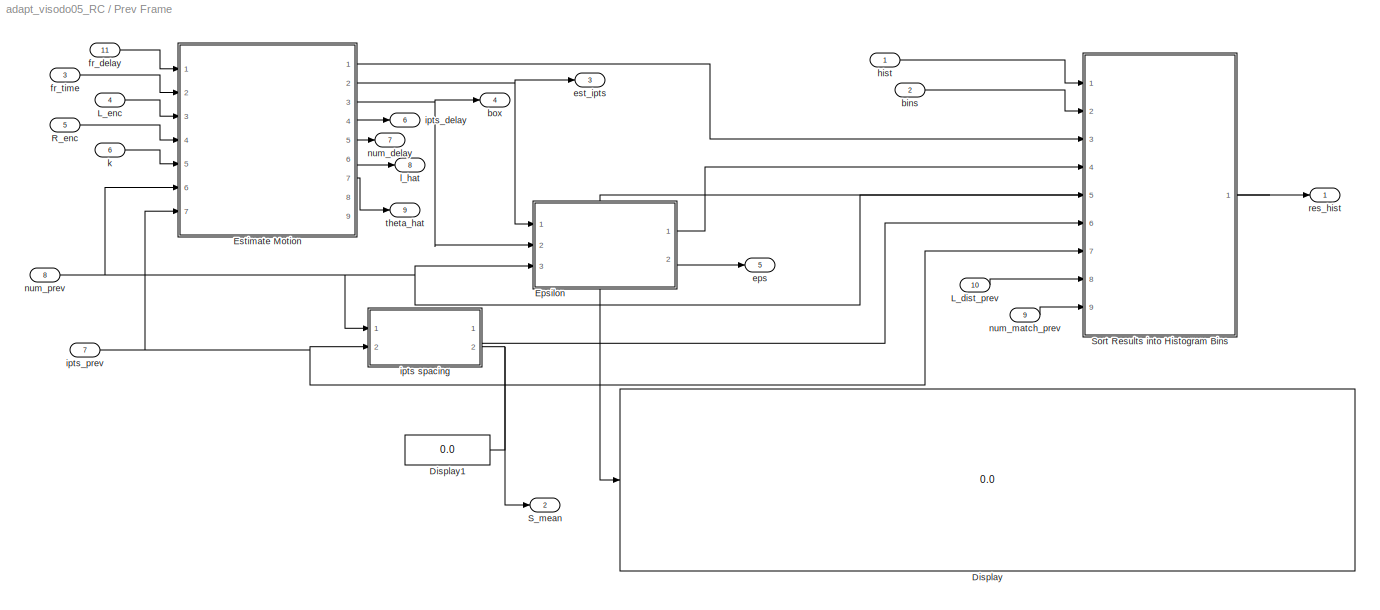
BLOCK [SubSystem] Prev Frame
  FunctionWithSeparateData = off
  MaskHideContents = off
  MinAlgLoopOccurrences = off
  Opaque = off
  Ports = [11, 9]
  PropExecContextOutsideSubsystem = off
  RTWSystemCode = Auto
  RequestExecContextInheritance = off
  SID = 1303
BLOCK [Display] Prev Frame/Display
  Decimation = 1
  Lockdown = off
  Ports = [1]
  SID = 1518
BLOCK [Display] Prev Frame/Display1
  Decimation = 1
  Lockdown = off
  Ports = [1]
  SID = 1519
BLOCK [SubSystem] Prev Frame/Epsilon
  FunctionWithSeparateData = off
  MaskDescription = Embedded MATLAB block
  MaskDisplay = disp('calc_eps');
  MaskHideContents = off
  MaskIconFrame = on
  MaskIconOpaque = off
  MaskIconRotate = none
  MaskIconUnits = autoscale
  MaskPortRotate = default
  MaskSelfModifiable = on
  MaskType = Stateflow
  MinAlgLoopOccurrences = off
  Opaque = off
  PermitHierarchicalResolution = ExplicitOnly
  Ports = [3, 2]
  PropExecContextOutsideSubsystem = off
  RTWSystemCode = Auto
  RequestExecContextInheritance = off
  SID = 1298
  TreatAsAtomicUnit = on
BLOCK [Demux] Prev Frame/Epsilon/ Demux 
  Outputs = 1
  Ports = [1, 1]
  SID = 15
BLOCK [S-Function] Prev Frame/Epsilon/ SFunction 
  EnableBusSupport = on
  FunctionName = sf_sfun
  PortCounts = [3 3]
  Ports = [3, 3]
  SID = 14
  Tag = Stateflow S-Function adapt_visodo05_RC 15
BLOCK [Terminator] Prev Frame/Epsilon/ Terminator 
  SID = 17
BLOCK [Inport] Prev Frame/Epsilon/box
  IconDisplay = Port number
  Port = 2
  SID = 18
BLOCK [Outport] Prev Frame/Epsilon/eps
  IconDisplay = Port number
  OutDataType = sfix(16)
  OutScaling = 2^0
  Port = 2
  SID = 5
BLOCK [Outport] Prev Frame/Epsilon/eps_vec
  IconDisplay = Port number
  SID = 21
BLOCK [Inport] Prev Frame/Epsilon/est_ipts
  IconDisplay = Port number
  SID = 19
BLOCK [Inport] Prev Frame/Epsilon/num_prev
  IconDisplay = Port number
  OutDataType = sfix(16)
  OutScaling = 2^0
  Port = 3
  SID = 1
BLOCK [SubSystem] Prev Frame/Estimate Motion
  FunctionWithSeparateData = off
  MaskDescription = Embedded MATLAB block
  MaskDisplay = disp('est_mot');
  MaskHideContents = off
  MaskIconFrame = on
  MaskIconOpaque = off
  MaskIconRotate = none
  MaskIconUnits = autoscale
  MaskPortRotate = default
  MaskSelfModifiable = on
  MaskType = Stateflow
  MinAlgLoopOccurrences = off
  Opaque = off
  PermitHierarchicalResolution = ExplicitOnly
  Ports = [7, 9]
  PropExecContextOutsideSubsystem = off
  RTWSystemCode = Auto
  RequestExecContextInheritance = off
  SID = 1517
  TreatAsAtomicUnit = on
BLOCK [Demux] Prev Frame/Estimate Motion/ Demux 
  Outputs = 1
  Ports = [1, 1]
  SID = 15
BLOCK [S-Function] Prev Frame/Estimate Motion/ SFunction 
  EnableBusSupport = on
  FunctionName = sf_sfun
  PortCounts = [7 10]
  Ports = [7, 10]
  SID = 14
  Tag = Stateflow S-Function adapt_visodo05_RC 11
BLOCK [Terminator] Prev Frame/Estimate Motion/ Terminator 
  SID = 17
BLOCK [Inport] Prev Frame/Estimate Motion/L_enc
  IconDisplay = Port number
  Port = 3
  SID = 22
BLOCK [Inport] Prev Frame/Estimate Motion/R_enc
  IconDisplay = Port number
  Port = 4
  SID = 23
BLOCK [Outport] Prev Frame/Estimate Motion/box
  IconDisplay = Port number
  Port = 3
  SID = 24
BLOCK [Outport] Prev Frame/Estimate Motion/ef
  IconDisplay = Port number
  SID = 26
BLOCK [Outport] Prev Frame/Estimate Motion/est_ipts
  IconDisplay = Port number
  OutDataType = sfix(16)
  OutScaling = 2^0
  Port = 2
  SID = 5
BLOCK [Inport] Prev Frame/Estimate Motion/fr_delay
  IconDisplay = Port number
  SID = 31
BLOCK [Inport] Prev Frame/Estimate Motion/fr_time
  IconDisplay = Port number
  Port = 2
  SID = 21
BLOCK [Outport] Prev Frame/Estimate Motion/ipts_delay
  IconDisplay = Port number
  Port = 4
  SID = 32
BLOCK [Inport] Prev Frame/Estimate Motion/ipts_prev
  IconDisplay = Port number
  Port = 7
  SID = 20
BLOCK [Inport] Prev Frame/Estimate Motion/k
  IconDisplay = Port number
  Port = 5
  SID = 25
BLOCK [Outport] Prev Frame/Estimate Motion/l
  IconDisplay = Port number
  Port = 6
  SID = 34
BLOCK [Outport] Prev Frame/Estimate Motion/num_delay
  IconDisplay = Port number
  Port = 5
  SID = 33
BLOCK [Inport] Prev Frame/Estimate Motion/num_prev
  IconDisplay = Port number
  Port = 6
  SID = 30
BLOCK [Outport] Prev Frame/Estimate Motion/t
  IconDisplay = Port number
  Port = 7
  SID = 35
BLOCK [Outport] Prev Frame/Estimate Motion/test
  IconDisplay = Port number
  Port = 8
  SID = 28
BLOCK [Outport] Prev Frame/Estimate Motion/test2
  IconDisplay = Port number
  Port = 9
  SID = 27
BLOCK [Inport] Prev Frame/L_dist_prev
  IconDisplay = Port number
  Port = 10
  SID = 1389
BLOCK [Inport] Prev Frame/L_enc
  IconDisplay = Port number
  Port = 4
  SID = 1307
BLOCK [Inport] Prev Frame/R_enc
  IconDisplay = Port number
  Port = 5
  SID = 1309
BLOCK [Outport] Prev Frame/S_mean
  IconDisplay = Port number
  Port = 2
  SID = 1523
BLOCK [SubSystem] Prev Frame/Sort Results into Histogram Bins
  FunctionWithSeparateData = off
  MaskDescription = Embedded MATLAB block
  MaskDisplay = disp('bins');
  MaskHideContents = off
  MaskIconFrame = on
  MaskIconOpaque = off
  MaskIconRotate = none
  MaskIconUnits = autoscale
  MaskPortRotate = default
  MaskSelfModifiable = on
  MaskType = Stateflow
  MinAlgLoopOccurrences = off
  Opaque = off
  PermitHierarchicalResolution = ExplicitOnly
  Ports = [9, 1]
  PropExecContextOutsideSubsystem = off
  RTWSystemCode = Auto
  RequestExecContextInheritance = off
  SID = 1290
  TreatAsAtomicUnit = on
BLOCK [Demux] Prev Frame/Sort Results into Histogram Bins/ Demux 
  Outputs = 1
  Ports = [1, 1]
  SID = 15
BLOCK [S-Function] Prev Frame/Sort Results into Histogram Bins/ SFunction 
  EnableBusSupport = on
  FunctionName = sf_sfun
  PortCounts = [9 2]
  Ports = [9, 2]
  SID = 14
  Tag = Stateflow S-Function adapt_visodo05_RC 13
BLOCK [Terminator] Prev Frame/Sort Results into Histogram Bins/ Terminator 
  SID = 17
BLOCK [Inport] Prev Frame/Sort Results into Histogram Bins/L_dist_prev
  IconDisplay = Port number
  Port = 8
  SID = 24
BLOCK [Inport] Prev Frame/Sort Results into Histogram Bins/S
  IconDisplay = Port number
  Port = 6
  SID = 20
BLOCK [Inport] Prev Frame/Sort Results into Histogram Bins/bins
  IconDisplay = Port number
  Port = 2
  SID = 23
BLOCK [Inport] Prev Frame/Sort Results into Histogram Bins/ef
  IconDisplay = Port number
  Port = 3
  SID = 21
BLOCK [Inport] Prev Frame/Sort Results into Histogram Bins/eps
  IconDisplay = Port number
  Port = 4
  SID = 22
BLOCK [Inport] Prev Frame/Sort Results into Histogram Bins/hist
  IconDisplay = Port number
  SID = 18
BLOCK [Inport] Prev Frame/Sort Results into Histogram Bins/ipts_prev
  IconDisplay = Port number
  OutDataType = sfix(16)
  OutScaling = 2^0
  Port = 7
  SID = 1
BLOCK [Inport] Prev Frame/Sort Results into Histogram Bins/match_prev
  IconDisplay = Port number
  Port = 9
  SID = 25
BLOCK [Inport] Prev Frame/Sort Results into Histogram Bins/num_prev
  IconDisplay = Port number
  Port = 5
  SID = 19
BLOCK [Outport] Prev Frame/Sort Results into Histogram Bins/res_hist
  IconDisplay = Port number
  OutDataType = sfix(16)
  OutScaling = 2^0
  SID = 5
BLOCK [Inport] Prev Frame/bins
  IconDisplay = Port number
  Port = 2
  SID = 1383
BLOCK [Outport] Prev Frame/box
  IconDisplay = Port number
  Port = 4
  SID = 1305
BLOCK [Outport] Prev Frame/eps
  IconDisplay = Port number
  Port = 5
  SID = 1479
BLOCK [Outport] Prev Frame/est_ipts
  IconDisplay = Port number
  Port = 3
  SID = 1304
BLOCK [Inport] Prev Frame/fr_delay
  IconDisplay = Port number
  Port = 11
  SID = 1476
BLOCK [Inport] Prev Frame/fr_time
  IconDisplay = Port number
  Port = 3
  SID = 1306
BLOCK [Inport] Prev Frame/hist
  IconDisplay = Port number
  SID = 1308
BLOCK [SubSystem] Prev Frame/ipts spacing
  FunctionWithSeparateData = off
  MaskDescription = Embedded MATLAB block
  MaskDisplay = disp('spacing');
  MaskHideContents = off
  MaskIconFrame = on
  MaskIconOpaque = off
  MaskIconRotate = none
  MaskIconUnits = autoscale
  MaskPortRotate = default
  MaskSelfModifiable = on
  MaskType = Stateflow
  MinAlgLoopOccurrences = off
  Opaque = off
  PermitHierarchicalResolution = ExplicitOnly
  Ports = [2, 2]
  PropExecContextOutsideSubsystem = off
  RTWSystemCode = Auto
  RequestExecContextInheritance = off
  SID = 1300
  TreatAsAtomicUnit = on
BLOCK [Demux] Prev Frame/ipts spacing/ Demux 
  Outputs = 1
  Ports = [1, 1]
  SID = 15
BLOCK [S-Function] Prev Frame/ipts spacing/ SFunction 
  EnableBusSupport = on
  FunctionName = sf_sfun
  PortCounts = [2 3]
  Ports = [2, 3]
  SID = 14
  Tag = Stateflow S-Function adapt_visodo05_RC 24
BLOCK [Terminator] Prev Frame/ipts spacing/ Terminator 
  SID = 17
BLOCK [Outport] Prev Frame/ipts spacing/S
  IconDisplay = Port number
  SID = 18
BLOCK [Outport] Prev Frame/ipts spacing/S_mean
  IconDisplay = Port number
  Port = 2
  SID = 20
BLOCK [Inport] Prev Frame/ipts spacing/ipts_prev
  IconDisplay = Port number
  OutDataType = sfix(16)
  OutScaling = 2^0
  Port = 2
  SID = 1
BLOCK [Inport] Prev Frame/ipts spacing/num_prev
  IconDisplay = Port number
  SID = 19
BLOCK [Outport] Prev Frame/ipts_delay
  IconDisplay = Port number
  Port = 6
  SID = 1478
BLOCK [Inport] Prev Frame/ipts_prev
  IconDisplay = Port number
  Port = 7
  SID = 1315
BLOCK [Inport] Prev Frame/k
  IconDisplay = Port number
  Port = 6
  SID = 1313
BLOCK [Outport] Prev Frame/l_hat
  IconDisplay = Port number
  Port = 8
  SID = 1495
BLOCK [Outport] Prev Frame/num_delay
  IconDisplay = Port number
  Port = 7
  SID = 1312
BLOCK [Inport] Prev Frame/num_match_prev
  IconDisplay = Port number
  Port = 9
  SID = 1390
BLOCK [Inport] Prev Frame/num_prev
  IconDisplay = Port number
  Port = 8
  SID = 1316
BLOCK [Outport] Prev Frame/res_hist
  IconDisplay = Port number
  SID = 1310
BLOCK [Outport] Prev Frame/theta_hat
  IconDisplay = Port number
  Port = 9
  SID = 1496
BLOCK [Constant] R
  OutDataType = fixdt(1, 16)
  OutScaling = 2^0
  SID = 1539
  Value = R
BLOCK [Switch] Switch
  InputSameDT = off
  OutDataType = fixdt(1, 16)
  OutScaling = 2^0
  SID = 1540
  SaturateOnIntegerOverflow = off
  Threshold = 5
BLOCK [SubSystem] Time
  FunctionWithSeparateData = off
  MaskHideContents = off
  MinAlgLoopOccurrences = off
  Opaque = off
  Ports = [1, 2]
  PropExecContextOutsideSubsystem = off
  RTWSystemCode = Auto
  RequestExecContextInheritance = off
  SID = 1541
BLOCK [S-Function] Time/Elapsed Time
  EnableBusSupport = off
  FunctionName = output_real_time3
  Ports = [1, 1]
  SID = 1543
BLOCK [SubSystem] Time/Frame Time
  FunctionWithSeparateData = off
  MaskDescription = Embedded MATLAB block
  MaskDisplay = disp('frame_time');
  MaskHideContents = off
  MaskIconFrame = on
  MaskIconOpaque = off
  MaskIconRotate = none
  MaskIconUnits = autoscale
  MaskPortRotate = default
  MaskSelfModifiable = on
  MaskType = Stateflow
  MinAlgLoopOccurrences = off
  Opaque = off
  PermitHierarchicalResolution = ExplicitOnly
  Ports = [1, 1]
  PropExecContextOutsideSubsystem = off
  RTWSystemCode = Auto
  RequestExecContextInheritance = off
  SID = 1544
  TreatAsAtomicUnit = on
BLOCK [Demux] Time/Frame Time/ Demux 
  Outputs = 1
  Ports = [1, 1]
  SID = 15
BLOCK [S-Function] Time/Frame Time/ SFunction 
  EnableBusSupport = on
  FunctionName = sf_sfun
  PortCounts = [1 2]
  Ports = [1, 2]
  SID = 14
  Tag = Stateflow S-Function adapt_visodo05_RC 12
BLOCK [Terminator] Time/Frame Time/ Terminator 
  SID = 17
BLOCK [Inport] Time/Frame Time/el_time
  IconDisplay = Port number
  OutDataType = sfix(16)
  OutScaling = 2^0
  SID = 1
BLOCK [Outport] Time/Frame Time/fr_time
  IconDisplay = Port number
  OutDataType = sfix(16)
  OutScaling = 2^0
  SID = 5
BLOCK [Outport] Time/el_time
  IconDisplay = Port number
  SID = 1545
BLOCK [Outport] Time/fr_time
  IconDisplay = Port number
  Port = 2
  SID = 1546
BLOCK [Inport] Time/tsim
  IconDisplay = Port number
  OutDataType = fixdt(1, 16)
  OutScaling = 2^0
  SID = 1542
BLOCK [ToFile] To File
  Filename = model_output.mat
  MatrixName = output
  SID = 1550
BLOCK [Constant] Wait
  OutDataType = fixdt(1, 16)
  OutScaling = 2^0
  SID = 1547
  Value = 0
BLOCK [Reference] fps  REF=vipsnks/Frame Rate\nDisplay
  DialogController = vipDDGCreate
  DialogControllerArgs = DataTag0
  Ports = [1]
  SID = 919
  SourceBlock = vipsnks/Frame Rate\nDisplay
  SourceType = Frame Rate Display
  UpdateRate = 10
BLOCK [Display] fr_delay
  Decimation = 1
  Lockdown = off
  Ports = [1]
  SID = 1511
BLOCK [S-Function] fromKinect_RD_lores2
  EnableBusSupport = off
  FunctionName = fromKinect_RD_lores2
  MaskDisplay = image(imread('<path>'))
  MaskIconFrame = on
  MaskIconOpaque = on
  MaskIconRotate = none
  MaskIconUnits = autoscale
  MaskPortRotate = default
  Ports = [0, 2]
  SID = 1524
BLOCK [UnitDelay] ipts_prev
  SID = 1293
  SampleTime = -1
BLOCK [Constant] k
  OutDataType = fixdt(1, 16)
  OutScaling = 2^0
  SID = 1221
BLOCK [UnitDelay] l_hat_prev
  SID = 1512
  SampleTime = -1
BLOCK [UnitDelay] num_match_prev
  SID = 1096
  SampleTime = -1
BLOCK [UnitDelay] num_prev
  SID = 1297
  SampleTime = -1
BLOCK [Display] z_wL
  Decimation = 1
  Lockdown = off
  Ports = [1]
  SID = 1513
BLOCK [UnitDelay] z_wL_prev
  SID = 1514
  SampleTime = -1
LINE # frames in \nwindow:1 -> Adaptation:3
LINE Adaptation/Adjust Scale \nor Mask/ Demux :1 -> Adaptation/Adjust Scale \nor Mask/ Terminator :1
LINE Adaptation/Adjust Scale \nor Mask/ SFunction :1 -> Adaptation/Adjust Scale \nor Mask/ Demux :1
LINE Adaptation/Adjust Scale \nor Mask/ SFunction :2 -> Adaptation/Adjust Scale \nor Mask/filter_size:1
LINE Adaptation/Adjust Scale \nor Mask/ SFunction :3 -> Adaptation/Adjust Scale \nor Mask/hist_ind:1
LINE Adaptation/Adjust Scale \nor Mask/ SFunction :4 -> Adaptation/Adjust Scale \nor Mask/f_ind:1
LINE Adaptation/Adjust Scale \nor Mask/ SFunction :5 -> Adaptation/Adjust Scale \nor Mask/test:1
LINE Adaptation/Adjust Scale \nor Mask/L_enc:1 -> Adaptation/Adjust Scale \nor Mask/ SFunction :6
LINE Adaptation/Adjust Scale \nor Mask/Nu:1 -> Adaptation/Adjust Scale \nor Mask/ SFunction :3
LINE Adaptation/Adjust Scale \nor Mask/S_tab:1 -> Adaptation/Adjust Scale \nor Mask/ SFunction :5
LINE Adaptation/Adjust Scale \nor Mask/mean_d_bin:1 -> Adaptation/Adjust Scale \nor Mask/ SFunction :8
LINE Adaptation/Adjust Scale \nor Mask/num_prev:1 -> Adaptation/Adjust Scale \nor Mask/ SFunction :7
LINE Adaptation/Adjust Scale \nor Mask/req_n:1 -> Adaptation/Adjust Scale \nor Mask/ SFunction :1
LINE Adaptation/Adjust Scale \nor Mask/res_hist:1 -> Adaptation/Adjust Scale \nor Mask/ SFunction :4
LINE Adaptation/Adjust Scale \nor Mask/window:1 -> Adaptation/Adjust Scale \nor Mask/ SFunction :2
LINE Adaptation/Adjust Scale \nor Mask:1 -> Adaptation/Switch3:2
NET Adaptation/Adjust Scale \nor Mask:2 -> Adaptation/Depth Mask:1, Adaptation/Unit Delay:1, Adaptation/hist_ind:1
LINE Adaptation/Adjust Scale \nor Mask:3 -> Adaptation/Unit Delay1:1
LINE Adaptation/Cl:1 -> Adaptation/Hypothesis Test:2
LINE Adaptation/Compute Stats/ Demux :1 -> Adaptation/Compute Stats/ Terminator :1
LINE Adaptation/Compute Stats/ SFunction :1 -> Adaptation/Compute Stats/ Demux :1
LINE Adaptation/Compute Stats/ SFunction :2 -> Adaptation/Compute Stats/Ln:1
LINE Adaptation/Compute Stats/ SFunction :3 -> Adaptation/Compute Stats/sn:1
LINE Adaptation/Compute Stats/ SFunction :4 -> Adaptation/Compute Stats/Nu:1
LINE Adaptation/Compute Stats/ SFunction :5 -> Adaptation/Compute Stats/Sigma:1
LINE Adaptation/Compute Stats/ SFunction :6 -> Adaptation/Compute Stats/SEM:1
LINE Adaptation/Compute Stats/ SFunction :7 -> Adaptation/Compute Stats/ef:1
LINE Adaptation/Compute Stats/ SFunction :8 -> Adaptation/Compute Stats/Nu_av:1
LINE Adaptation/Compute Stats/ SFunction :9 -> Adaptation/Compute Stats/Sigma_av:1
LINE Adaptation/Compute Stats/bins:1 -> Adaptation/Compute Stats/ SFunction :3
LINE Adaptation/Compute Stats/max_d_ind:1 -> Adaptation/Compute Stats/ SFunction :4
LINE Adaptation/Compute Stats/num_match_prev:1 -> Adaptation/Compute Stats/ SFunction :1
LINE Adaptation/Compute Stats/res_hist:1 -> Adaptation/Compute Stats/ SFunction :2
LINE Adaptation/Compute Stats:3 -> Adaptation/Adjust Scale \nor Mask:3
LINE Adaptation/Compute Stats:5 -> Adaptation/Hypothesis Test:6
NET Adaptation/Compute Stats:7 -> Adaptation/Nu:1, Adaptation/req_n2:1
NET Adaptation/Compute Stats:8 -> Adaptation/Nu_UB:1, Adaptation/Sigma:1
LINE Adaptation/Cu:1 -> Adaptation/Hypothesis Test:1
LINE Adaptation/Depth Mask/ Demux :1 -> Adaptation/Depth Mask/ Terminator :1
LINE Adaptation/Depth Mask/ SFunction :1 -> Adaptation/Depth Mask/ Demux :1
LINE Adaptation/Depth Mask/ SFunction :2 -> Adaptation/Depth Mask/mask_im_pad:1
LINE Adaptation/Depth Mask/ SFunction :3 -> Adaptation/Depth Mask/mask_pts:1
LINE Adaptation/Depth Mask/ SFunction :4 -> Adaptation/Depth Mask/num_mask:1
LINE Adaptation/Depth Mask/ SFunction :5 -> Adaptation/Depth Mask/max_d:1
LINE Adaptation/Depth Mask/bins:1 -> Adaptation/Depth Mask/ SFunction :3
LINE Adaptation/Depth Mask/d_cm:1 -> Adaptation/Depth Mask/ SFunction :4
LINE Adaptation/Depth Mask/hist:1 -> Adaptation/Depth Mask/ SFunction :2
LINE Adaptation/Depth Mask/hist_ind:1 -> Adaptation/Depth Mask/ SFunction :1
LINE Adaptation/Depth Mask:1 -> Adaptation/mask_im:1
LINE Adaptation/Depth Mask:2 -> Adaptation/mask_pts:1
LINE Adaptation/Depth Mask:3 -> Adaptation/num_mask:1
LINE Adaptation/Hypothesis Test/ Demux :1 -> Adaptation/Hypothesis Test/ Terminator :1
LINE Adaptation/Hypothesis Test/ SFunction :1 -> Adaptation/Hypothesis Test/ Demux :1
LINE Adaptation/Hypothesis Test/ SFunction :2 -> Adaptation/Hypothesis Test/ME:1
LINE Adaptation/Hypothesis Test/ SFunction :3 -> Adaptation/Hypothesis Test/req_n:1
LINE Adaptation/Hypothesis Test/Cl:1 -> Adaptation/Hypothesis Test/ SFunction :2
LINE Adaptation/Hypothesis Test/Cu:1 -> Adaptation/Hypothesis Test/ SFunction :1
LINE Adaptation/Hypothesis Test/SEM:1 -> Adaptation/Hypothesis Test/ SFunction :6
LINE Adaptation/Hypothesis Test/max_match:1 -> Adaptation/Hypothesis Test/ SFunction :3
LINE Adaptation/Hypothesis Test/min_match:1 -> Adaptation/Hypothesis Test/ SFunction :4
LINE Adaptation/Hypothesis Test/num_match:1 -> Adaptation/Hypothesis Test/ SFunction :5
LINE Adaptation/Hypothesis Test:1 -> Adaptation/ME:1
LINE Adaptation/Hypothesis Test:2 -> Adaptation/Switch2:1
LINE Adaptation/L_enc:1 -> Adaptation/Adjust Scale \nor Mask:6
LINE Adaptation/Maintain S(f) \ntable/ Demux :1 -> Adaptation/Maintain S(f) \ntable/ Terminator :1
LINE Adaptation/Maintain S(f) \ntable/ SFunction :1 -> Adaptation/Maintain S(f) \ntable/ Demux :1
LINE Adaptation/Maintain S(f) \ntable/ SFunction :2 -> Adaptation/Maintain S(f) \ntable/S_tab:1
LINE Adaptation/Maintain S(f) \ntable/S_mean:1 -> Adaptation/Maintain S(f) \ntable/ SFunction :2
LINE Adaptation/Maintain S(f) \ntable/f_ind:1 -> Adaptation/Maintain S(f) \ntable/ SFunction :3
LINE Adaptation/Maintain S(f) \ntable/window:1 -> Adaptation/Maintain S(f) \ntable/ SFunction :1
LINE Adaptation/Maintain S(f) \ntable:1 -> Adaptation/Adjust Scale \nor Mask:5
LINE Adaptation/S_mean:1 -> Adaptation/Maintain S(f) \ntable:2
NET Adaptation/Switch2:1 -> Adaptation/Adjust Scale \nor Mask:1, Adaptation/Scope:1, Adaptation/req_n1:1, Adaptation/req_n:1
LINE Adaptation/Switch3:1 -> Adaptation/filter_size:1
LINE Adaptation/Unit Delay1:1 -> Adaptation/Maintain S(f) \ntable:3
LINE Adaptation/Unit Delay:1 -> Adaptation/Compute Stats:4
NET Adaptation/bins:1 -> Adaptation/Compute Stats:3, Adaptation/Depth Mask:3
LINE Adaptation/constant\nreq_n:1 -> Adaptation/Switch2:2
LINE Adaptation/d_cm:1 -> Adaptation/Depth Mask:4
LINE Adaptation/filter size:1 -> Adaptation/Switch3:1
LINE Adaptation/hist:1 -> Adaptation/Depth Mask:2
LINE Adaptation/max # of \nmatches:1 -> Adaptation/Hypothesis Test:3
LINE Adaptation/mean_d_bin:1 -> Adaptation/Adjust Scale \nor Mask:8
LINE Adaptation/min # of \nmatches:1 -> Adaptation/Hypothesis Test:4
NET Adaptation/num_match:1 -> Adaptation/Compute Stats:1, Adaptation/Hypothesis Test:5
LINE Adaptation/num_prev:1 -> Adaptation/Adjust Scale \nor Mask:7
NET Adaptation/res_hist:1 -> Adaptation/Adjust Scale \nor Mask:4, Adaptation/Compute Stats:2
NET Adaptation/window:1 -> Adaptation/Adjust Scale \nor Mask:2, Adaptation/Maintain S(f) \ntable:1
LINE Adaptation:2 -> Model Output:10
LINE Adaptation:3 -> Model Output:9
LINE Adaptation:5 -> Extract 3D Features:4
LINE Adaptation:6 -> Extract 3D Features:5
NET Adaptation:7 -> Extract 3D Features:6, Model Output:4
LINE Adaptation:8 -> Model Output:3
LINE Build Histogram/ Demux :1 -> Build Histogram/ Terminator :1
LINE Build Histogram/ SFunction :1 -> Build Histogram/ Demux :1
LINE Build Histogram/ SFunction :2 -> Build Histogram/bins:1
LINE Build Histogram/ SFunction :3 -> Build Histogram/hist:1
LINE Build Histogram/ SFunction :4 -> Build Histogram/mean_d:1
LINE Build Histogram/ SFunction :5 -> Build Histogram/mean_d_bin:1
LINE Build Histogram/d_cm:1 -> Build Histogram/ SFunction :1
NET Build Histogram:1 -> Adaptation:6, Prev Frame:2
NET Build Histogram:2 -> Adaptation:7, Prev Frame:1
LINE Build Histogram:4 -> Adaptation:11
LINE Cl:1 -> Adaptation:2
NET Clock:1 -> Switch:1, Switch:2
LINE Convert Depth/Depth factor:1 -> Convert Depth/Divide:1
LINE Convert Depth/Dilation:1 -> Convert Depth/d_cm:1
LINE Convert Depth/Divide:1 -> Convert Depth/Dilation:1
LINE Convert Depth/d_mm:1 -> Convert Depth/Divide:2
NET Convert Depth:1 -> Adaptation:5, Build Histogram:1, Extract 3D Features:3
LINE Cu:1 -> Adaptation:1
LINE Determine Frame \nDelay/ Demux :1 -> Determine Frame \nDelay/ Terminator :1
LINE Determine Frame \nDelay/ SFunction :1 -> Determine Frame \nDelay/ Demux :1
LINE Determine Frame \nDelay/ SFunction :2 -> Determine Frame \nDelay/fr_delay:1
LINE Determine Frame \nDelay/l_hat:1 -> Determine Frame \nDelay/ SFunction :1
LINE Determine Frame \nDelay/z_wL:1 -> Determine Frame \nDelay/ SFunction :2
NET Determine Frame \nDelay:1 -> Matching & Visodo:8, Prev Frame:11, fr_delay:1
LINE Divide:1 -> Motion:enable
LINE Extract 3D Features/(uc,vc) to (xn,yn)/ Demux :1 -> Extract 3D Features/(uc,vc) to (xn,yn)/ Terminator :1
LINE Extract 3D Features/(uc,vc) to (xn,yn)/ SFunction :1 -> Extract 3D Features/(uc,vc) to (xn,yn)/ Demux :1
LINE Extract 3D Features/(uc,vc) to (xn,yn)/ SFunction :2 -> Extract 3D Features/(uc,vc) to (xn,yn)/xn_c:1
LINE Extract 3D Features/(uc,vc) to (xn,yn)/ipts:1 -> Extract 3D Features/(uc,vc) to (xn,yn)/ SFunction :1
LINE Extract 3D Features/(uc,vc) to (xn,yn)/num_pts:1 -> Extract 3D Features/(uc,vc) to (xn,yn)/ SFunction :2
LINE Extract 3D Features/(uc,vc) to (xn,yn):1 -> Extract 3D Features/3D Color Coord of ipts:5
LINE Extract 3D Features/(ud,vd) to (xn,yn)/ Demux :1 -> Extract 3D Features/(ud,vd) to (xn,yn)/ Terminator :1
LINE Extract 3D Features/(ud,vd) to (xn,yn)/ SFunction :1 -> Extract 3D Features/(ud,vd) to (xn,yn)/ Demux :1
LINE Extract 3D Features/(ud,vd) to (xn,yn)/ SFunction :2 -> Extract 3D Features/(ud,vd) to (xn,yn)/xn_d:1
LINE Extract 3D Features/(ud,vd) to (xn,yn)/ SFunction :3 -> Extract 3D Features/(ud,vd) to (xn,yn)/xd_3D:1
LINE Extract 3D Features/(ud,vd) to (xn,yn)/ SFunction :4 -> Extract 3D Features/(ud,vd) to (xn,yn)/count:1
LINE Extract 3D Features/(ud,vd) to (xn,yn)/d_cm:1 -> Extract 3D Features/(ud,vd) to (xn,yn)/ SFunction :1
LINE Extract 3D Features/(ud,vd) to (xn,yn)/ipts_rpix:1 -> Extract 3D Features/(ud,vd) to (xn,yn)/ SFunction :2
LINE Extract 3D Features/(ud,vd) to (xn,yn)/max_depth:1 -> Extract 3D Features/(ud,vd) to (xn,yn)/ SFunction :3
LINE Extract 3D Features/(ud,vd) to (xn,yn):1 -> Extract 3D Features/3D Color Coord of ipts:2
LINE Extract 3D Features/(ud,vd) to (xn,yn):2 -> Extract 3D Features/3D Color Coord of ipts:3
LINE Extract 3D Features/3D Color Coord of ipts/ Demux :1 -> Extract 3D Features/3D Color Coord of ipts/ Terminator :1
LINE Extract 3D Features/3D Color Coord of ipts/ SFunction :1 -> Extract 3D Features/3D Color Coord of ipts/ Demux :1
LINE Extract 3D Features/3D Color Coord of ipts/ SFunction :2 -> Extract 3D Features/3D Color Coord of ipts/ipts_3D:1
LINE Extract 3D Features/3D Color Coord of ipts/ SFunction :3 -> Extract 3D Features/3D Color Coord of ipts/ipts_dpix:1
LINE Extract 3D Features/3D Color Coord of ipts/ SFunction :4 -> Extract 3D Features/3D Color Coord of ipts/l1norm:1
LINE Extract 3D Features/3D Color Coord of ipts/ SFunction :5 -> Extract 3D Features/3D Color Coord of ipts/mean_d_ipts:1
LINE Extract 3D Features/3D Color Coord of ipts/d_cm:1 -> Extract 3D Features/3D Color Coord of ipts/ SFunction :1
LINE Extract 3D Features/3D Color Coord of ipts/max_depth:1 -> Extract 3D Features/3D Color Coord of ipts/ SFunction :4
LINE Extract 3D Features/3D Color Coord of ipts/num_pts:1 -> Extract 3D Features/3D Color Coord of ipts/ SFunction :6
LINE Extract 3D Features/3D Color Coord of ipts/offset:1 -> Extract 3D Features/3D Color Coord of ipts/ SFunction :7
LINE Extract 3D Features/3D Color Coord of ipts/xd_3D:1 -> Extract 3D Features/3D Color Coord of ipts/ SFunction :3
LINE Extract 3D Features/3D Color Coord of ipts/xn_c:1 -> Extract 3D Features/3D Color Coord of ipts/ SFunction :5
LINE Extract 3D Features/3D Color Coord of ipts/xn_d:1 -> Extract 3D Features/3D Color Coord of ipts/ SFunction :2
LINE Extract 3D Features/3D Color Coord of ipts:1 -> Extract 3D Features/ipts_3D:1
LINE Extract 3D Features/3D Color Coord of ipts:2 -> Extract 3D Features/ipts_dpix:1
LINE Extract 3D Features/3D Color Coord of ipts:4 -> Extract 3D Features/mean_d_ipts:1
LINE Extract 3D Features/Box Filter & \nLocal Extrema/ Demux :1 -> Extract 3D Features/Box Filter & \nLocal Extrema/ Terminator :1
LINE Extract 3D Features/Box Filter & \nLocal Extrema/ SFunction :1 -> Extract 3D Features/Box Filter & \nLocal Extrema/ Demux :1
LINE Extract 3D Features/Box Filter & \nLocal Extrema/ SFunction :2 -> Extract 3D Features/Box Filter & \nLocal Extrema/det_H:1
LINE Extract 3D Features/Box Filter & \nLocal Extrema/ SFunction :3 -> Extract 3D Features/Box Filter & \nLocal Extrema/ipts:1
LINE Extract 3D Features/Box Filter & \nLocal Extrema/ SFunction :4 -> Extract 3D Features/Box Filter & \nLocal Extrema/ipts_depth:1
LINE Extract 3D Features/Box Filter & \nLocal Extrema/ SFunction :5 -> Extract 3D Features/Box Filter & \nLocal Extrema/num_pts:1
LINE Extract 3D Features/Box Filter & \nLocal Extrema/ SFunction :6 -> Extract 3D Features/Box Filter & \nLocal Extrema/mindet_H:1
LINE Extract 3D Features/Box Filter & \nLocal Extrema/ SFunction :7 -> Extract 3D Features/Box Filter & \nLocal Extrema/maxdet_H:1
LINE Extract 3D Features/Box Filter & \nLocal Extrema/ SFunction :8 -> Extract 3D Features/Box Filter & \nLocal Extrema/min_pix_sep:1
LINE Extract 3D Features/Box Filter & \nLocal Extrema/filter_size:1 -> Extract 3D Features/Box Filter & \nLocal Extrema/ SFunction :4
LINE Extract 3D Features/Box Filter & \nLocal Extrema/ii:1 -> Extract 3D Features/Box Filter & \nLocal Extrema/ SFunction :3
LINE Extract 3D Features/Box Filter & \nLocal Extrema/mask_pts:1 -> Extract 3D Features/Box Filter & \nLocal Extrema/ SFunction :1
LINE Extract 3D Features/Box Filter & \nLocal Extrema/num_mask:1 -> Extract 3D Features/Box Filter & \nLocal Extrema/ SFunction :2
LINE Extract 3D Features/Box Filter & \nLocal Extrema:2 -> Extract 3D Features/convert:1
NET Extract 3D Features/Box Filter & \nLocal Extrema:4 -> Extract 3D Features/(uc,vc) to (xn,yn):2, Extract 3D Features/3D Color Coord of ipts:6, Extract 3D Features/num_ipts:1
LINE Extract 3D Features/Box Filter & \nLocal Extrema:5 -> Extract 3D Features/Display:1
LINE Extract 3D Features/Box Filter & \nLocal Extrema:6 -> Extract 3D Features/Display1:1
LINE Extract 3D Features/Camera Offset (cm):1 -> Extract 3D Features/3D Color Coord of ipts:7
LINE Extract 3D Features/Data Type Conversion:1 -> Extract 3D Features/ipts_rpix:1
LINE Extract 3D Features/Integral Image/ Demux :1 -> Extract 3D Features/Integral Image/ Terminator :1
LINE Extract 3D Features/Integral Image/ SFunction :1 -> Extract 3D Features/Integral Image/ Demux :1
LINE Extract 3D Features/Integral Image/ SFunction :2 -> Extract 3D Features/Integral Image/ii:1
LINE Extract 3D Features/Integral Image/im:1 -> Extract 3D Features/Integral Image/ SFunction :1
LINE Extract 3D Features/Integral Image:1 -> Extract 3D Features/Box Filter & \nLocal Extrema:3
NET Extract 3D Features/convert:1 -> Extract 3D Features/(uc,vc) to (xn,yn):1, Extract 3D Features/(ud,vd) to (xn,yn):2, Extract 3D Features/Data Type Conversion:1
NET Extract 3D Features/d_cm:1 -> Extract 3D Features/(ud,vd) to (xn,yn):1, Extract 3D Features/3D Color Coord of ipts:1
LINE Extract 3D Features/filter_size:1 -> Extract 3D Features/Box Filter & \nLocal Extrema:4
LINE Extract 3D Features/mask_pts:1 -> Extract 3D Features/Box Filter & \nLocal Extrema:1
NET Extract 3D Features/max_depth:1 -> Extract 3D Features/(ud,vd) to (xn,yn):3, Extract 3D Features/3D Color Coord of ipts:4
LINE Extract 3D Features/num_mask:1 -> Extract 3D Features/Box Filter & \nLocal Extrema:2
LINE Extract 3D Features/rgb:1 -> Extract 3D Features/Integral Image:1
NET Extract 3D Features:1 -> Matching & Visodo:1, Model Output:2, num_prev:1
NET Extract 3D Features:2 -> Matching & Visodo:2, ipts_prev:1
LINE Extract 3D Features:3 -> Matching & Visodo:3
LINE Extract 3D Features:5 -> Model Output:11
LINE L:1 -> Motion:1
LINE L_dist_prev:1 -> Prev Frame:10
LINE Matching & Visodo/Feature Matching/ Demux :1 -> Matching & Visodo/Feature Matching/ Terminator :1
LINE Matching & Visodo/Feature Matching/ SFunction :1 -> Matching & Visodo/Feature Matching/ Demux :1
LINE Matching & Visodo/Feature Matching/ SFunction :2 -> Matching & Visodo/Feature Matching/M:1
LINE Matching & Visodo/Feature Matching/ SFunction :3 -> Matching & Visodo/Feature Matching/num_match:1
LINE Matching & Visodo/Feature Matching/ SFunction :4 -> Matching & Visodo/Feature Matching/miss_count:1
LINE Matching & Visodo/Feature Matching/ SFunction :5 -> Matching & Visodo/Feature Matching/test:1
LINE Matching & Visodo/Feature Matching/ SFunction :6 -> Matching & Visodo/Feature Matching/test2:1
LINE Matching & Visodo/Feature Matching/ SFunction :7 -> Matching & Visodo/Feature Matching/M_rpix:1
LINE Matching & Visodo/Feature Matching/box:1 -> Matching & Visodo/Feature Matching/ SFunction :3
LINE Matching & Visodo/Feature Matching/est_ipts:1 -> Matching & Visodo/Feature Matching/ SFunction :2
LINE Matching & Visodo/Feature Matching/ipts:1 -> Matching & Visodo/Feature Matching/ SFunction :6
LINE Matching & Visodo/Feature Matching/ipts_prev:1 -> Matching & Visodo/Feature Matching/ SFunction :4
LINE Matching & Visodo/Feature Matching/ipts_rpix:1 -> Matching & Visodo/Feature Matching/ SFunction :1
LINE Matching & Visodo/Feature Matching/num_cur:1 -> Matching & Visodo/Feature Matching/ SFunction :7
LINE Matching & Visodo/Feature Matching/num_prev:1 -> Matching & Visodo/Feature Matching/ SFunction :5
NET Matching & Visodo/Feature Matching:1 -> Matching & Visodo/Display:1, Matching & Visodo/Odometry:1
NET Matching & Visodo/Feature Matching:2 -> Matching & Visodo/Odometry:2, Matching & Visodo/num matches:1, Matching & Visodo/num_match:1
LINE Matching & Visodo/Feature Matching:3 -> Matching & Visodo/miss_count:1
LINE Matching & Visodo/Feature Matching:6 -> Matching & Visodo/M_rpix:1
LINE Matching & Visodo/Odometry/ Demux :1 -> Matching & Visodo/Odometry/ Terminator :1
LINE Matching & Visodo/Odometry/ SFunction :1 -> Matching & Visodo/Odometry/ Demux :1
LINE Matching & Visodo/Odometry/ SFunction :2 -> Matching & Visodo/Odometry/ff_disp_av:1
LINE Matching & Visodo/Odometry/ SFunction :3 -> Matching & Visodo/Odometry/ff_disp_wL:1
LINE Matching & Visodo/Odometry/ SFunction :4 -> Matching & Visodo/Odometry/cum_disp_av:1
LINE Matching & Visodo/Odometry/ SFunction :5 -> Matching & Visodo/Odometry/cum_disp_wL:1
LINE Matching & Visodo/Odometry/ SFunction :6 -> Matching & Visodo/Odometry/L_dist:1
LINE Matching & Visodo/Odometry/ SFunction :7 -> Matching & Visodo/Odometry/L_vec:1
LINE Matching & Visodo/Odometry/ SFunction :8 -> Matching & Visodo/Odometry/vo_mean:1
LINE Matching & Visodo/Odometry/ SFunction :9 -> Matching & Visodo/Odometry/z_wL:1
LINE Matching & Visodo/Odometry/M:1 -> Matching & Visodo/Odometry/ SFunction :1
LINE Matching & Visodo/Odometry/fr_delay:1 -> Matching & Visodo/Odometry/ SFunction :3
LINE Matching & Visodo/Odometry/l_hat:1 -> Matching & Visodo/Odometry/ SFunction :4
LINE Matching & Visodo/Odometry/num_match:1 -> Matching & Visodo/Odometry/ SFunction :2
LINE Matching & Visodo/Odometry/theta_hat:1 -> Matching & Visodo/Odometry/ SFunction :5
LINE Matching & Visodo/Odometry:2 -> Matching & Visodo/ff_disp_wL:1
LINE Matching & Visodo/Odometry:4 -> Matching & Visodo/cum_disp_wL:1
LINE Matching & Visodo/Odometry:5 -> Matching & Visodo/ L_dist:1
LINE Matching & Visodo/Odometry:8 -> Matching & Visodo/z_wL:1
LINE Matching & Visodo/box:1 -> Matching & Visodo/Feature Matching:3
LINE Matching & Visodo/est_ipts:1 -> Matching & Visodo/Feature Matching:2
LINE Matching & Visodo/fr_delay:1 -> Matching & Visodo/Odometry:3
LINE Matching & Visodo/ipts_cur:1 -> Matching & Visodo/Feature Matching:6
LINE Matching & Visodo/ipts_delay:1 -> Matching & Visodo/Feature Matching:4
LINE Matching & Visodo/ipts_rpix:1 -> Matching & Visodo/Feature Matching:1
LINE Matching & Visodo/l_hat:1 -> Matching & Visodo/Odometry:4
LINE Matching & Visodo/num_cur:1 -> Matching & Visodo/Feature Matching:7
LINE Matching & Visodo/num_delay:1 -> Matching & Visodo/Feature Matching:5
LINE Matching & Visodo/theta_hat:1 -> Matching & Visodo/Odometry:5
LINE Matching & Visodo:1 -> L_dist_prev:1
NET Matching & Visodo:2 -> Model Output:5, num_match_prev:1
LINE Matching & Visodo:3 -> Model Output:6
LINE Matching & Visodo:4 -> Model Output:7
LINE Matching & Visodo:5 -> Model Output:8
LINE Matching & Visodo:7 -> z_wL_prev:1
LINE Max. Range \n(cm):1 -> Extract 3D Features:1
LINE Model Output/ Demux :1 -> Model Output/ Terminator :1
LINE Model Output/ SFunction :1 -> Model Output/ Demux :1
LINE Model Output/ SFunction :2 -> Model Output/output:1
LINE Model Output/Le:1 -> Model Output/ SFunction :12
LINE Model Output/Nu:1 -> Model Output/ SFunction :10
LINE Model Output/Re:1 -> Model Output/ SFunction :13
LINE Model Output/Sigma:1 -> Model Output/ SFunction :9
LINE Model Output/cum_disp:1 -> Model Output/ SFunction :8
LINE Model Output/ff_disp:1 -> Model Output/ SFunction :7
LINE Model Output/filter:1 -> Model Output/ SFunction :4
LINE Model Output/hist_ind:1 -> Model Output/ SFunction :3
LINE Model Output/matches:1 -> Model Output/ SFunction :5
LINE Model Output/mean_d:1 -> Model Output/ SFunction :11
LINE Model Output/miss:1 -> Model Output/ SFunction :6
LINE Model Output/num_cur:1 -> Model Output/ SFunction :2
LINE Model Output/time:1 -> Model Output/ SFunction :1
LINE Model Output:1 -> To File:1
LINE Motion/Data Type Conversion1:1 -> Motion/S-Function2:2
LINE Motion/Data Type Conversion2:1 -> Motion/L_enc:1
LINE Motion/Data Type Conversion3:1 -> Motion/R_enc:1
LINE Motion/Data Type Conversion:1 -> Motion/S-Function2:1
LINE Motion/Embedded\nMATLAB Function/ Demux :1 -> Motion/Embedded\nMATLAB Function/ Terminator :1
LINE Motion/Embedded\nMATLAB Function/ SFunction :1 -> Motion/Embedded\nMATLAB Function/ Demux :1
LINE Motion/Embedded\nMATLAB Function/ SFunction :2 -> Motion/Embedded\nMATLAB Function/M1:1
LINE Motion/Embedded\nMATLAB Function/ SFunction :3 -> Motion/Embedded\nMATLAB Function/M2:1
LINE Motion/Embedded\nMATLAB Function/M1in:1 -> Motion/Embedded\nMATLAB Function/ SFunction :1
LINE Motion/Embedded\nMATLAB Function/M2in:1 -> Motion/Embedded\nMATLAB Function/ SFunction :2
LINE Motion/Embedded\nMATLAB Function:1 -> Motion/Data Type Conversion:1
LINE Motion/Embedded\nMATLAB Function:2 -> Motion/Data Type Conversion1:1
LINE Motion/Gain:1 -> Motion/Embedded\nMATLAB Function:2
LINE Motion/L:1 -> Motion/Embedded\nMATLAB Function:1
LINE Motion/R:1 -> Motion/Gain:1
LINE Motion/S-Function2:1 -> Motion/Data Type Conversion2:1
LINE Motion/S-Function2:2 -> Motion/Data Type Conversion3:1
NET Motion:1 -> Adaptation:9, Model Output:12, Prev Frame:4
NET Motion:2 -> Model Output:13, Prev Frame:5
LINE Motion\nOn//Off:1 -> Divide:2
LINE Prev Frame/Epsilon/ Demux :1 -> Prev Frame/Epsilon/ Terminator :1
LINE Prev Frame/Epsilon/ SFunction :1 -> Prev Frame/Epsilon/ Demux :1
LINE Prev Frame/Epsilon/ SFunction :2 -> Prev Frame/Epsilon/eps_vec:1
LINE Prev Frame/Epsilon/ SFunction :3 -> Prev Frame/Epsilon/eps:1
LINE Prev Frame/Epsilon/box:1 -> Prev Frame/Epsilon/ SFunction :2
LINE Prev Frame/Epsilon/est_ipts:1 -> Prev Frame/Epsilon/ SFunction :1
LINE Prev Frame/Epsilon/num_prev:1 -> Prev Frame/Epsilon/ SFunction :3
LINE Prev Frame/Epsilon:1 -> Prev Frame/Sort Results into Histogram Bins:4
LINE Prev Frame/Epsilon:2 -> Prev Frame/eps:1
LINE Prev Frame/Estimate Motion/ Demux :1 -> Prev Frame/Estimate Motion/ Terminator :1
LINE Prev Frame/Estimate Motion/ SFunction :1 -> Prev Frame/Estimate Motion/ Demux :1
LINE Prev Frame/Estimate Motion/ SFunction :10 -> Prev Frame/Estimate Motion/test2:1
LINE Prev Frame/Estimate Motion/ SFunction :2 -> Prev Frame/Estimate Motion/ef:1
LINE Prev Frame/Estimate Motion/ SFunction :3 -> Prev Frame/Estimate Motion/est_ipts:1
LINE Prev Frame/Estimate Motion/ SFunction :4 -> Prev Frame/Estimate Motion/box:1
LINE Prev Frame/Estimate Motion/ SFunction :5 -> Prev Frame/Estimate Motion/ipts_delay:1
LINE Prev Frame/Estimate Motion/ SFunction :6 -> Prev Frame/Estimate Motion/num_delay:1
LINE Prev Frame/Estimate Motion/ SFunction :7 -> Prev Frame/Estimate Motion/l:1
LINE Prev Frame/Estimate Motion/ SFunction :8 -> Prev Frame/Estimate Motion/t:1
LINE Prev Frame/Estimate Motion/ SFunction :9 -> Prev Frame/Estimate Motion/test:1
LINE Prev Frame/Estimate Motion/L_enc:1 -> Prev Frame/Estimate Motion/ SFunction :3
LINE Prev Frame/Estimate Motion/R_enc:1 -> Prev Frame/Estimate Motion/ SFunction :4
LINE Prev Frame/Estimate Motion/fr_delay:1 -> Prev Frame/Estimate Motion/ SFunction :1
LINE Prev Frame/Estimate Motion/fr_time:1 -> Prev Frame/Estimate Motion/ SFunction :2
LINE Prev Frame/Estimate Motion/ipts_prev:1 -> Prev Frame/Estimate Motion/ SFunction :7
LINE Prev Frame/Estimate Motion/k:1 -> Prev Frame/Estimate Motion/ SFunction :5
LINE Prev Frame/Estimate Motion/num_prev:1 -> Prev Frame/Estimate Motion/ SFunction :6
LINE Prev Frame/Estimate Motion:1 -> Prev Frame/Sort Results into Histogram Bins:3
NET Prev Frame/Estimate Motion:2 -> Prev Frame/Epsilon:1, Prev Frame/est_ipts:1
NET Prev Frame/Estimate Motion:3 -> Prev Frame/Epsilon:2, Prev Frame/box:1
LINE Prev Frame/Estimate Motion:4 -> Prev Frame/ipts_delay:1
LINE Prev Frame/Estimate Motion:5 -> Prev Frame/num_delay:1
LINE Prev Frame/Estimate Motion:6 -> Prev Frame/l_hat:1
LINE Prev Frame/Estimate Motion:7 -> Prev Frame/theta_hat:1
LINE Prev Frame/L_dist_prev:1 -> Prev Frame/Sort Results into Histogram Bins:8
LINE Prev Frame/L_enc:1 -> Prev Frame/Estimate Motion:3
LINE Prev Frame/R_enc:1 -> Prev Frame/Estimate Motion:4
LINE Prev Frame/Sort Results into Histogram Bins/ Demux :1 -> Prev Frame/Sort Results into Histogram Bins/ Terminator :1
LINE Prev Frame/Sort Results into Histogram Bins/ SFunction :1 -> Prev Frame/Sort Results into Histogram Bins/ Demux :1
LINE Prev Frame/Sort Results into Histogram Bins/ SFunction :2 -> Prev Frame/Sort Results into Histogram Bins/res_hist:1
LINE Prev Frame/Sort Results into Histogram Bins/L_dist_prev:1 -> Prev Frame/Sort Results into Histogram Bins/ SFunction :8
LINE Prev Frame/Sort Results into Histogram Bins/S:1 -> Prev Frame/Sort Results into Histogram Bins/ SFunction :6
LINE Prev Frame/Sort Results into Histogram Bins/bins:1 -> Prev Frame/Sort Results into Histogram Bins/ SFunction :2
LINE Prev Frame/Sort Results into Histogram Bins/ef:1 -> Prev Frame/Sort Results into Histogram Bins/ SFunction :3
LINE Prev Frame/Sort Results into Histogram Bins/eps:1 -> Prev Frame/Sort Results into Histogram Bins/ SFunction :4
LINE Prev Frame/Sort Results into Histogram Bins/hist:1 -> Prev Frame/Sort Results into Histogram Bins/ SFunction :1
LINE Prev Frame/Sort Results into Histogram Bins/ipts_prev:1 -> Prev Frame/Sort Results into Histogram Bins/ SFunction :7
LINE Prev Frame/Sort Results into Histogram Bins/match_prev:1 -> Prev Frame/Sort Results into Histogram Bins/ SFunction :9
LINE Prev Frame/Sort Results into Histogram Bins/num_prev:1 -> Prev Frame/Sort Results into Histogram Bins/ SFunction :5
NET Prev Frame/Sort Results into Histogram Bins:1 -> Prev Frame/Display:1, Prev Frame/res_hist:1
LINE Prev Frame/bins:1 -> Prev Frame/Sort Results into Histogram Bins:2
LINE Prev Frame/fr_delay:1 -> Prev Frame/Estimate Motion:1
LINE Prev Frame/fr_time:1 -> Prev Frame/Estimate Motion:2
LINE Prev Frame/hist:1 -> Prev Frame/Sort Results into Histogram Bins:1
LINE Prev Frame/ipts spacing/ Demux :1 -> Prev Frame/ipts spacing/ Terminator :1
LINE Prev Frame/ipts spacing/ SFunction :1 -> Prev Frame/ipts spacing/ Demux :1
LINE Prev Frame/ipts spacing/ SFunction :2 -> Prev Frame/ipts spacing/S:1
LINE Prev Frame/ipts spacing/ SFunction :3 -> Prev Frame/ipts spacing/S_mean:1
LINE Prev Frame/ipts spacing/ipts_prev:1 -> Prev Frame/ipts spacing/ SFunction :2
LINE Prev Frame/ipts spacing/num_prev:1 -> Prev Frame/ipts spacing/ SFunction :1
LINE Prev Frame/ipts spacing:1 -> Prev Frame/Sort Results into Histogram Bins:6
NET Prev Frame/ipts spacing:2 -> Prev Frame/Display1:1, Prev Frame/S_mean:1
NET Prev Frame/ipts_prev:1 -> Prev Frame/Estimate Motion:7, Prev Frame/Sort Results into Histogram Bins:7, Prev Frame/ipts spacing:2
LINE Prev Frame/k:1 -> Prev Frame/Estimate Motion:5
LINE Prev Frame/num_match_prev:1 -> Prev Frame/Sort Results into Histogram Bins:9
NET Prev Frame/num_prev:1 -> Prev Frame/Epsilon:3, Prev Frame/Estimate Motion:6, Prev Frame/Sort Results into Histogram Bins:5, Prev Frame/ipts spacing:1
LINE Prev Frame:1 -> Adaptation:8
LINE Prev Frame:2 -> Adaptation:12
LINE Prev Frame:3 -> Matching & Visodo:4
LINE Prev Frame:4 -> Matching & Visodo:5
LINE Prev Frame:6 -> Matching & Visodo:7
LINE Prev Frame:7 -> Matching & Visodo:6
NET Prev Frame:8 -> Matching & Visodo:9, l_hat_prev:1
LINE Prev Frame:9 -> Matching & Visodo:10
LINE R:1 -> Motion:2
NET Switch:1 -> Divide:1, Time:1
NET Time/Elapsed Time:1 -> Time/Frame Time:1, Time/el_time:1
LINE Time/Frame Time/ Demux :1 -> Time/Frame Time/ Terminator :1
LINE Time/Frame Time/ SFunction :1 -> Time/Frame Time/ Demux :1
LINE Time/Frame Time/ SFunction :2 -> Time/Frame Time/fr_time:1
LINE Time/Frame Time/el_time:1 -> Time/Frame Time/ SFunction :1
LINE Time/Frame Time:1 -> Time/fr_time:1
LINE Time/tsim:1 -> Time/Elapsed Time:1
LINE Time:1 -> Model Output:1
LINE Time:2 -> Prev Frame:3
LINE Wait:1 -> Switch:3
NET fromKinect_RD_lores2:1 -> Extract 3D Features:2, fps:1
LINE fromKinect_RD_lores2:2 -> Convert Depth:1
LINE ipts_prev:1 -> Prev Frame:7
LINE k:1 -> Prev Frame:6
LINE l_hat_prev:1 -> Determine Frame \nDelay:1
NET num_match_prev:1 -> Adaptation:4, Prev Frame:9
NET num_prev:1 -> Adaptation:10, Prev Frame:8
NET z_wL_prev:1 -> Determine Frame \nDelay:2, z_wL:1
note: NET lines group one-source signal fan-out (src -> all destinations, sorted); 1:1 wires keep LINE
CHART Build Histogram states=1 transitions=1
  STATE_LABEL 'eML_blk_kernel()'
CHART Determine Frame \nDelay states=1 transitions=1
  STATE_LABEL 'eML_blk_kernel()'
CHART Adaptation/Hypothesis Test states=1 transitions=1
  STATE_LABEL 'eML_blk_kernel()'
CHART Extract 3D Features/Integral Image states=1 transitions=1
  STATE_LABEL 'eML_blk_kernel()'
CHART Extract 3D Features/Box Filter & \nLocal Extrema states=1 transitions=1
  STATE_LABEL 'eML_blk_kernel()'
CHART Adaptation/Maintain S(f) \ntable states=1 transitions=1
  STATE_LABEL 'eML_blk_kernel()'
CHART Motion/Embedded\nMATLAB Function states=1 transitions=1
  STATE_LABEL 'eML_blk_kernel()'
CHART Extract 3D Features/(uc,vc) to (xn,yn) states=1 transitions=1
  STATE_LABEL 'eML_blk_kernel()'
CHART Extract 3D Features/(ud,vd) to (xn,yn) states=1 transitions=1
  STATE_LABEL 'eML_blk_kernel()'
CHART Extract 3D Features/3D Color Coord of ipts states=1 transitions=1
  STATE_LABEL 'eML_blk_kernel()'
CHART Prev Frame/Estimate Motion states=1 transitions=1
  STATE_LABEL 'eML_blk_kernel()'
CHART Time/Frame Time states=1 transitions=1
  STATE_LABEL 'eML_blk_kernel()'
CHART Prev Frame/Sort Results into Histogram Bins states=1 transitions=1
  STATE_LABEL 'eML_blk_kernel()'
CHART Adaptation/Adjust Scale \nor Mask states=1 transitions=1
  STATE_LABEL 'eML_blk_kernel()'
CHART Prev Frame/Epsilon states=1 transitions=1
  STATE_LABEL 'eML_blk_kernel()'
CHART Matching & Visodo/Feature Matching states=1 transitions=1
  STATE_LABEL 'eML_blk_kernel()'
CHART Model Output states=1 transitions=1
  STATE_LABEL 'eML_blk_kernel()'
CHART Matching & Visodo/Odometry states=1 transitions=1
  STATE_LABEL 'eML_blk_kernel()'
CHART Adaptation/Depth Mask states=1 transitions=1
  STATE_LABEL 'eML_blk_kernel()'
CHART Adaptation/Compute Stats states=1 transitions=1
  STATE_LABEL 'eML_blk_kernel()'
CHART Prev Frame/ipts spacing states=1 transitions=1
  STATE_LABEL 'eML_blk_kernel()'
note: 1 file-system path scrubbed to <path> (not preserved elsewhere — flat text is the only slx artifact)
